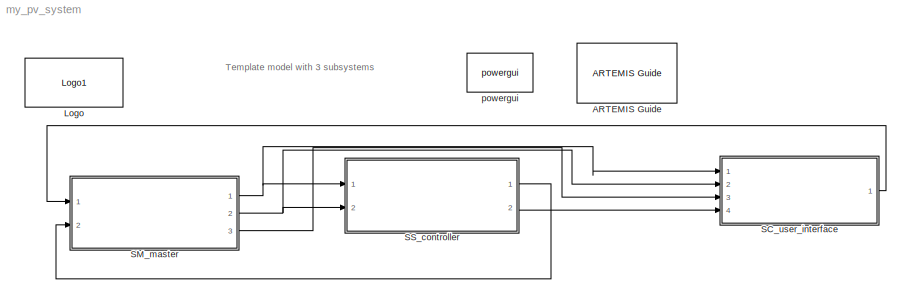
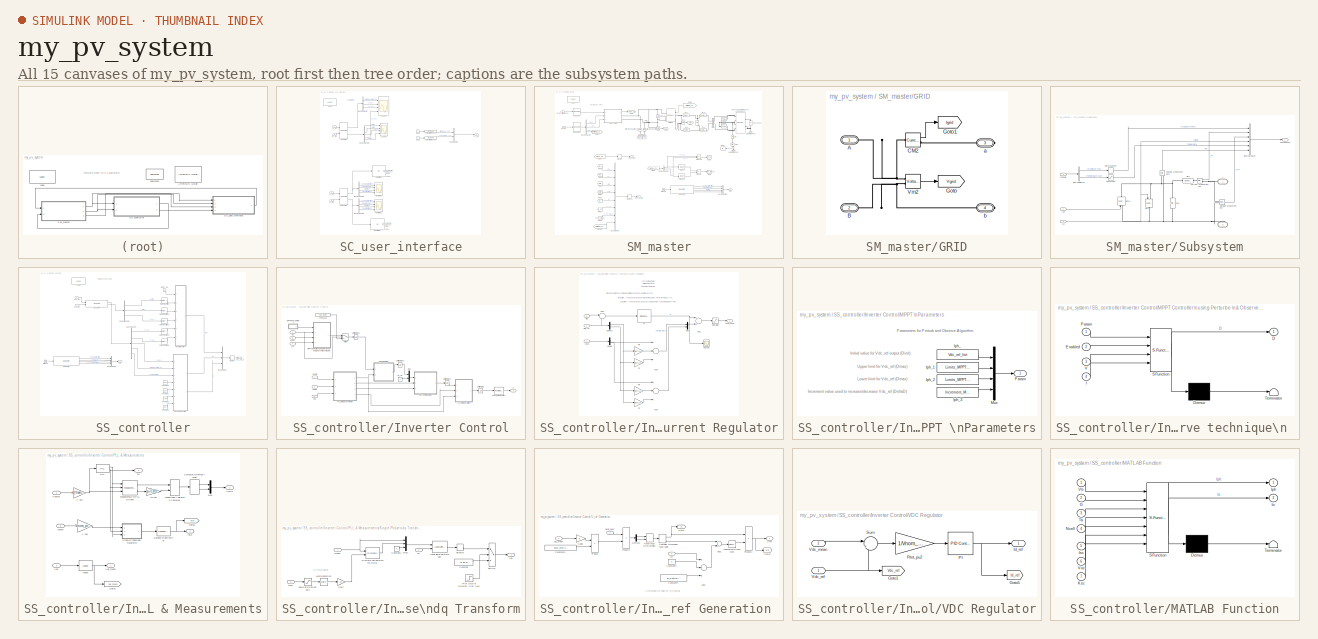
[diagram: thumbnail index - all 15 canvases of the model, root first then tree order]
MODEL my_pv_system
KIND model
BLOCK [Reference] ARTEMIS Guide  REF=artemis/ARTEMIS/ARTEMIS Guide
  Description = 5.0_z1
  LF = off
  Ports = []
  RT_fullcomp = off
  SID = 394
  SPSRulesBlock = SPSRules
  SourceBlock = artemis/ARTEMIS/ARTEMIS Guide
  SourceType = ARTEMISmethode
  Tag = FTSSmethode_opal_4hx0r99
  Thy_Impulse = on
  Ts = 50e-6
  ao = on
  ct_mac = off
  ctmm = off
  custom_type = off
  dpl_type = ARTEMiS DPL
  dtc = Off
  dtc_extra = 1
  dtc_opt = normal
  dtc_pied = 0.5
  dtc_sws = normal
  dyna = off
  lin_mov = off
  lock = on
  lsp = [0.001 2]
  nb_perm = 4
  opt = art5
  para = on
  paraExtinctionThy = off
  rlc_type = off
  simtype = off
  spike_skip = Disabled
  ssn = on
  ssn_ImpulseLoopBlockedStateUpdate = 5
  ssn_ext = off
  ssn_impulse = off
  ssn_impulse_loop = 5
  ssn_itvc = off
  ssn_ivic = off
  ssn_mov_iter_number = 5
  ssn_quasimpulse = off
  ssn_solver = Art5 with Backward Euler nodal interface
  ssn_switch_iter_number = 5
  tre = on
BLOCK [Reference] Logo  REF=opal_lib/Logo1
  Ports = []
  SID = 1
  SourceBlock = opal_lib/Logo1
  SourceType = Opal-RT logo
  vide = []
BLOCK [SubSystem] SC_user_interface
  Ports = [4, 1]
  RequestExecContextInheritance = off
  SID = 2
BLOCK [BusCreator] SC_user_interface/Bus\nCreator
  DisplayOption = bar
  Inputs = 2
  Ports = [2, 1]
  SID = 365
BLOCK [BusSelector] SC_user_interface/Bus\nSelector
  OutputSignals = Irradiance(W/m^2),I_PV,V_PV
  Ports = [1, 3]
  SID = 361
BLOCK [BusSelector] SC_user_interface/Bus\nSelector1
  OutputSignals = Vgrid,Igrid,Vdc,P_PV,Gate
  Ports = [1, 5]
  SID = 362
BLOCK [BusSelector] SC_user_interface/Bus\nSelector2
  OutputSignals = Computation time,Real step size,Idle time,Overrun times
  Ports = [1, 4]
  SID = 382
BLOCK [BusSelector] SC_user_interface/Bus\nSelector3
  OutputSignals = Computation time,Real step size,Idle time,Overrun times
  Ports = [1, 4]
  SID = 383
BLOCK [Reference] SC_user_interface/Logo  REF=opal_lib/Logo1
  Ports = []
  SID = 6
  SourceBlock = opal_lib/Logo1
  SourceType = Opal-RT logo
  vide = []
BLOCK [Scope] SC_user_interface/Monitoring
  DataFormat = StructureWithTime
  Floating = off
  LimitDataPoints = off
  NumInputPorts = 4
  Ports = [4]
  SID = 339
  SampleTime = 0
  SaveName = ScopeData6
  ShowLegends = off
  YMax = 5~5~5~5
  YMin = -5~-5~-5~-5
BLOCK [Scope] SC_user_interface/Monitoring1
  DataFormat = StructureWithTime
  Floating = off
  LimitDataPoints = off
  NumInputPorts = 4
  Ports = [4]
  SID = 384
  SampleTime = 0
  SaveName = ScopeData2
  ShowLegends = off
  YMax = 5~5~5~5
  YMin = -5~-5~-5~-5
BLOCK [Reference] SC_user_interface/OpComm  REF=rtlab/OpComm
  Interpolation = on
  Missed_Data = off
  Offset = off
  Ports = [2, 2]
  SID = 8
  Samples = off
  Sim_Time = off
  SourceBlock = rtlab/OpComm
  SourceType = RT-LAB OpComm
  Synchronization = on
  Threshold = 1.0
  dynSigOut = off
  from_console = 0
  groupe_acq = 1
  nbport = 2
  st = 0
  subsys_rate = 0
  warning_done = off
  writeOpCommFile = off
BLOCK [Reference] SC_user_interface/OpComm1  REF=rtlab/OpComm
  Interpolation = on
  Missed_Data = off
  Offset = off
  Ports = [2, 2]
  SID = 335
  Samples = off
  Sim_Time = off
  SourceBlock = rtlab/OpComm
  SourceType = RT-LAB OpComm
  Synchronization = on
  Threshold = 1.0
  dynSigOut = off
  from_console = 0
  groupe_acq = 2
  nbport = 2
  st = 0
  subsys_rate = 0
  warning_done = off
  writeOpCommFile = off
BLOCK [Scope] SC_user_interface/Scope
  DataFormat = StructureWithTime
  Floating = off
  LimitDataPoints = off
  NumInputPorts = 4
  Ports = [4]
  SID = 9
  SampleTime = 0
  ShowLegends = off
  TimeRange = 10
  YMax = 1001~9~500~3400
  YMin = 999~4~300~2000
BLOCK [Scope] SC_user_interface/Scope1
  DataFormat = StructureWithTime
  Floating = off
  LimitDataPoints = off
  NumInputPorts = 4
  Ports = [4]
  SID = 170
  SampleTime = 0
  SaveName = ScopeData1
  ShowLegends = off
  YMax = 100~5~5~5
  YMin = 0~-5~-5~-5
BLOCK [Reference] SC_user_interface/adjust reference1  REF=simulink/Math\nOperations/Slider\nGain
  Ports = [1, 1]
  SID = 79
  SourceBlock = simulink/Math\nOperations/Slider\nGain
  SourceType = Slider Gain
  gain = 25
  high = 60
  low = 0
BLOCK [Reference] SC_user_interface/adjust reference2  REF=simulink/Math\nOperations/Slider\nGain
  Ports = [1, 1]
  SID = 404
  SourceBlock = simulink/Math\nOperations/Slider\nGain
  SourceType = Slider Gain
  gain = 500
  high = 1000
  low = 0
BLOCK [Display] SC_user_interface/monitoring
  Decimation = 1
  Ports = [1]
  SID = 340
BLOCK [Display] SC_user_interface/monitoring1
  Decimation = 1
  Ports = [1]
  SID = 343
BLOCK [Constant] SC_user_interface/one1
  SID = 78
BLOCK [Constant] SC_user_interface/one2
  SID = 405
BLOCK [Inport] SC_user_interface/sc_in1
  IconDisplay = Port number
  SID = 3
BLOCK [Inport] SC_user_interface/sc_in2
  IconDisplay = Port number
  Port = 2
  SID = 4
BLOCK [Inport] SC_user_interface/sc_in4
  IconDisplay = Port number
  Port = 3
  SID = 336
BLOCK [Inport] SC_user_interface/sc_in5
  IconDisplay = Port number
  Port = 4
  SID = 337
BLOCK [Outport] SC_user_interface/sc_out
  IconDisplay = Port number
  SID = 12
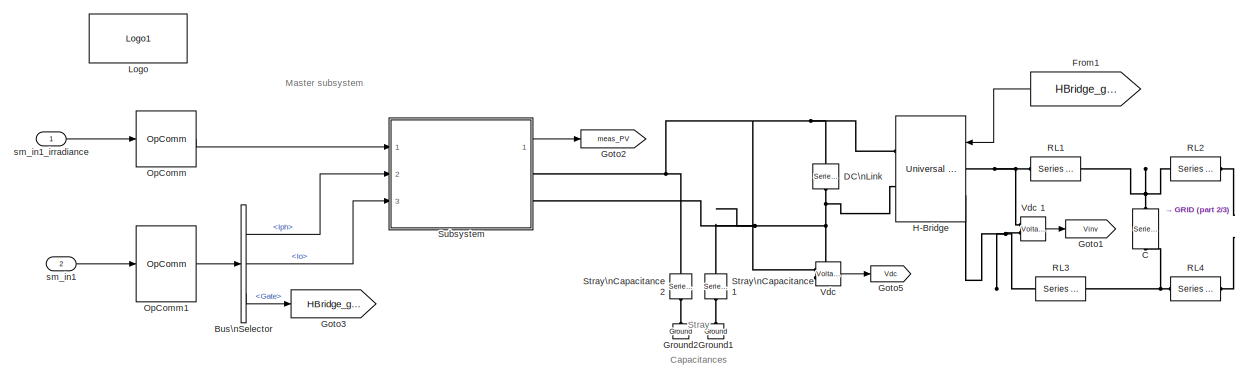
[diagram: SM_master - part 1/3, full width, top band]
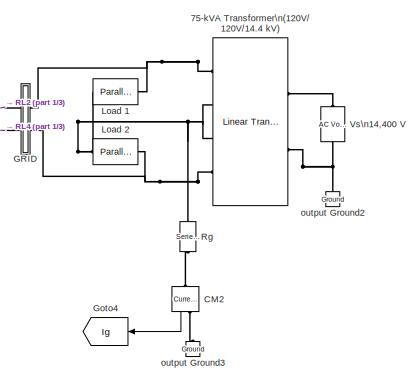
[diagram: SM_master - part 2/3, top right region]
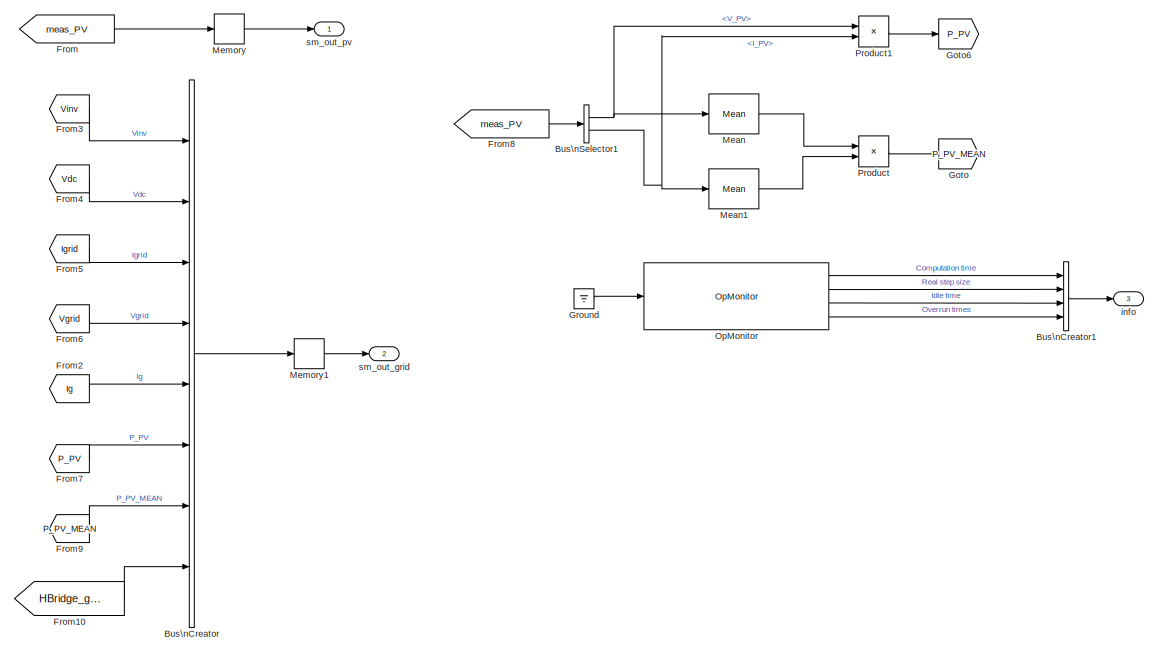
[diagram: SM_master - part 3/3, bottom center region]
BLOCK [SubSystem] SM_master
  Ports = [2, 3]
  RequestExecContextInheritance = off
  SID = 14
BLOCK [Reference] SM_master/75-kVA Transformer\n(120V//120V//14.4 kV)  REF=powerlib/Elements/Linear Transformer
  DataType = off
  Measurements = None
  NominalPower = [75e3,60]
  Ports = [0, 0, 0, 0, 0, 2, 4]
  RmLm = [50,50]
  SID = 86
  SourceBlock = powerlib/Elements/Linear Transformer
  SourceType = Linear Transformer
  ThreeWindings = on
  UNITS = pu
  winding1 = [14.4e3 0.01,0.03]
  winding2 = [120,0.02,0]
  winding3 = [120,0.02,0]
BLOCK [BusCreator] SM_master/Bus\nCreator
  DisplayOption = bar
  Inputs = 8
  Ports = [8, 1]
  SID = 354
BLOCK [BusCreator] SM_master/Bus\nCreator1
  DisplayOption = bar
  Ports = [4, 1]
  SID = 378
BLOCK [BusSelector] SM_master/Bus\nSelector
  OutputSignals = Iph,Io,Gate
  Ports = [1, 3]
  SID = 374
BLOCK [BusSelector] SM_master/Bus\nSelector1
  OutputSignals = V_PV,I_PV
  Ports = [1, 2]
  SID = 387
BLOCK [Reference] SM_master/C  REF=powerlib/Elements/Series RLC Load
  ActivePower = 10.5
  AttributesFormatString = \\n
  CapacitivePower = 525
  InductivePower = 0
  InitialCurrent = 0
  InitialVoltage = 0
  LConnTagsString = a
  Measurements = None
  NominalFrequency = 60
  NominalVoltage = 240
  Ports = [0, 0, 0, 0, 0, 1, 1]
  RConnTagsString = __new0
  SID = 87
  SetiL0 = off
  Setx0 = off
  SourceBlock = powerlib/Elements/Series RLC Load
  SourceType = Series RLC Load
BLOCK [Reference] SM_master/CM2  REF=powerlib/Measurements/Current Measurement
  OutputType = Complex
  PSBequivalent = 0
  PhasorSimulation = off
  Ports = [0, 1, 0, 0, 0, 1, 1]
  SID = 88
  SourceBlock = powerlib/Measurements/Current Measurement
  SourceType = Current Measurement
  UserDataPersistent = on
BLOCK [Reference] SM_master/DC\nLink  REF=powerlib/Elements/Series RLC Branch
  AttributesFormatString = \\n
  BranchType = C
  Capacitance = 3000e-6
  Inductance = 1.0
  InitialCurrent = 0
  InitialVoltage = 425
  LConnTagsString = __new0
  Measurements = None
  Ports = [0, 0, 0, 0, 0, 1, 1]
  RConnTagsString = __new0
  Resistance = 1.0
  SID = 89
  SetiL0 = off
  Setx0 = on
  SourceBlock = powerlib/Elements/Series RLC Branch
  SourceType = Series RLC Branch
BLOCK [From] SM_master/From
  GotoTag = meas_PV
  SID = 146
  TagVisibility = global
BLOCK [From] SM_master/From1
  GotoTag = HBridge_gate
  SID = 148
  TagVisibility = global
BLOCK [From] SM_master/From10
  GotoTag = HBridge_gate
  SID = 401
  TagVisibility = global
BLOCK [From] SM_master/From2
  GotoTag = Ig
  SID = 355
  TagVisibility = global
BLOCK [From] SM_master/From3
  GotoTag = Vinv
  SID = 356
  TagVisibility = global
BLOCK [From] SM_master/From4
  GotoTag = Vdc
  SID = 164
  TagVisibility = global
BLOCK [From] SM_master/From5
  GotoTag = Igrid
  SID = 166
  TagVisibility = global
BLOCK [From] SM_master/From6
  GotoTag = Vgrid
  SID = 167
  TagVisibility = global
BLOCK [From] SM_master/From7
  GotoTag = P_PV
  SID = 393
BLOCK [From] SM_master/From8
  GotoTag = meas_PV
  SID = 386
  TagVisibility = global
BLOCK [From] SM_master/From9
  GotoTag = P_PV_MEAN
  SID = 400
BLOCK [SubSystem] SM_master/GRID
  Ports = [0, 0, 0, 0, 0, 2, 2]
  RequestExecContextInheritance = off
  SID = 90
BLOCK [PMIOPort] SM_master/GRID/A
  Port = 1
  SID = 95
  Side = Left
BLOCK [PMIOPort] SM_master/GRID/B
  Port = 2
  SID = 96
  Side = Left
BLOCK [Reference] SM_master/GRID/CM2  REF=powerlib/Measurements/Current Measurement
  OutputType = Complex
  PSBequivalent = 0
  PhasorSimulation = off
  Ports = [0, 1, 0, 0, 0, 1, 1]
  SID = 91
  SourceBlock = powerlib/Measurements/Current Measurement
  SourceType = Current Measurement
  UserDataPersistent = on
BLOCK [Goto] SM_master/GRID/Goto
  GotoTag = Vgrid
  SID = 92
  TagVisibility = global
BLOCK [Goto] SM_master/GRID/Goto1
  GotoTag = Igrid
  SID = 93
  TagVisibility = global
BLOCK [Reference] SM_master/GRID/Vm2  REF=powerlib/Measurements/Voltage Measurement
  OutputType = Complex
  PSBequivalent = 0
  PhasorSimulation = off
  Ports = [0, 1, 0, 0, 0, 2]
  SID = 94
  SourceBlock = powerlib/Measurements/Voltage Measurement
  SourceType = Voltage Measurement
  UserDataPersistent = on
BLOCK [PMIOPort] SM_master/GRID/a
  Port = 3
  SID = 97
  Side = Right
BLOCK [PMIOPort] SM_master/GRID/b
  Port = 4
  SID = 98
  Side = Right
BLOCK [Goto] SM_master/Goto
  GotoTag = P_PV_MEAN
  SID = 392
BLOCK [Goto] SM_master/Goto1
  GotoTag = Vinv
  SID = 99
  TagVisibility = global
BLOCK [Goto] SM_master/Goto2
  GotoTag = meas_PV
  SID = 100
  TagVisibility = global
BLOCK [Goto] SM_master/Goto3
  GotoTag = HBridge_gate
  SID = 147
  TagVisibility = global
BLOCK [Goto] SM_master/Goto4
  GotoTag = Ig
  SID = 150
  TagVisibility = global
BLOCK [Goto] SM_master/Goto5
  GotoTag = Vdc
  SID = 101
  TagVisibility = global
BLOCK [Goto] SM_master/Goto6
  GotoTag = P_PV
  SID = 398
BLOCK [Ground] SM_master/Ground
  SID = 379
BLOCK [Reference] SM_master/Ground1  REF=powerlib/Elements/Ground
  LConnTagsString = a
  Ports = [0, 0, 0, 0, 0, 1]
  SID = 102
  SourceBlock = powerlib/Elements/Ground
  SourceType = Ground
BLOCK [Reference] SM_master/Ground2  REF=powerlib/Elements/Ground
  LConnTagsString = a
  Ports = [0, 0, 0, 0, 0, 1]
  SID = 103
  SourceBlock = powerlib/Elements/Ground
  SourceType = Ground
BLOCK [Reference] SM_master/H-Bridge   REF=powerlib/Power\nElectronics/Universal Bridge
  Arms = 2
  Device = IGBT / Diodes
  ForwardVoltage = 0
  ForwardVoltages = [ 0 0 ]
  GTOparameters = [ 10e-6 , 20e-6 ]
  IGBTparameters = [ 50e-6 , 50e-6 ]*0
  Lon = 0
  Measurements = None
  Measurements_2 = None
  Ports = [1, 0, 0, 0, 0, 2, 2]
  Ron = 1e-3
  SID = 104
  SnubberCapacitance = inf
  SnubberResistance = 1e6
  SourceBlock = powerlib/Power\nElectronics/Universal Bridge
  SourceType = Universal Bridge
  converterType = Rectifier
BLOCK [Reference] SM_master/Load 1  REF=powerlib/Elements/Parallel RLC Load
  ActivePower = 5e3
  AttributesFormatString = \\n
  CapacitivePower = 0
  InductivePower = 2e3
  InitialCurrent = 0
  InitialVoltage = 0
  LConnTagsString = a
  Measurements = None
  NominalFrequency = 50
  NominalVoltage = 120
  Ports = [0, 0, 0, 0, 0, 1, 1]
  RConnTagsString = __new0
  SID = 107
  SetiL0 = off
  Setx0 = off
  SourceBlock = powerlib/Elements/Parallel RLC Load
  SourceType = Parallel RLC Load
BLOCK [Reference] SM_master/Load 2  REF=powerlib/Elements/Parallel RLC Load
  ActivePower = 5e3
  AttributesFormatString = \\n
  CapacitivePower = 0
  InductivePower = 2e3
  InitialCurrent = 0
  InitialVoltage = 0
  LConnTagsString = a
  Measurements = None
  NominalFrequency = 50
  NominalVoltage = 120
  Ports = [0, 0, 0, 0, 0, 1, 1]
  RConnTagsString = __new0
  SID = 108
  SetiL0 = off
  Setx0 = off
  SourceBlock = powerlib/Elements/Parallel RLC Load
  SourceType = Parallel RLC Load
BLOCK [Reference] SM_master/Logo  REF=opal_lib/Logo1
  Ports = []
  SID = 18
  SourceBlock = opal_lib/Logo1
  SourceType = Opal-RT logo
  vide = []
BLOCK [Reference] SM_master/Mean  REF=powerlib_meascontrol/Measurements/Mean
  Freq = 50
  Ports = [1, 1]
  SID = 388
  SourceBlock = powerlib_meascontrol/Measurements/Mean
  SourceType = Mean
  Ts = 0
  Vinit = 0
BLOCK [Reference] SM_master/Mean1  REF=powerlib_meascontrol/Measurements/Mean
  Freq = 50
  Ports = [1, 1]
  SID = 389
  SourceBlock = powerlib_meascontrol/Measurements/Mean
  SourceType = Mean
  Ts = 0
  Vinit = 0
BLOCK [Memory] SM_master/Memory
  InheritSampleTime = on
  SID = 19
BLOCK [Memory] SM_master/Memory1
  InheritSampleTime = on
  SID = 162
BLOCK [Reference] SM_master/OpComm  REF=rtlab/OpComm
  Interpolation = on
  Missed_Data = off
  Offset = off
  Ports = [1, 1]
  SID = 21
  Samples = off
  Sim_Time = off
  SourceBlock = rtlab/OpComm
  SourceType = RT-LAB OpComm
  Synchronization = on
  Threshold = 1.0
  dynSigOut = off
  from_console = 1
  groupe_acq = 1
  nbport = 1
  st = 0
  subsys_rate = 0
  warning_done = off
  writeOpCommFile = off
BLOCK [Reference] SM_master/OpComm1  REF=rtlab/OpComm
  Interpolation = on
  Missed_Data = off
  Offset = off
  Ports = [1, 1]
  SID = 22
  Samples = off
  Sim_Time = off
  SourceBlock = rtlab/OpComm
  SourceType = RT-LAB OpComm
  Synchronization = on
  Threshold = 1.0
  dynSigOut = off
  from_console = 0
  groupe_acq = 1
  nbport = 1
  st = 0
  subsys_rate = 0
  warning_done = off
  writeOpCommFile = off
BLOCK [Reference] SM_master/OpMonitor  REF=rtlab/Monitoring/OpMonitor
  Ports = [1, 4]
  SID = 380
  SourceBlock = rtlab/Monitoring/OpMonitor
  SourceType = OpMonitor
  compute_time = on
  idle_time = on
  nb_overruns = on
  real_step = on
  user_name = my_event_name,another_event_name
  user_time = off
BLOCK [Product] SM_master/Product
  InputSameDT = off
  OutDataTypeStr = Inherit: Inherit via internal rule
  Ports = [2, 1]
  RndMeth = Floor
  SID = 390
  SaturateOnIntegerOverflow = off
BLOCK [Product] SM_master/Product1
  InputSameDT = off
  OutDataTypeStr = Inherit: Inherit via internal rule
  Ports = [2, 1]
  RndMeth = Floor
  SID = 399
  SaturateOnIntegerOverflow = off
BLOCK [Reference] SM_master/RL1  REF=powerlib/Elements/Series RLC Branch
  BranchType = RL
  Capacitance = 1e-6
  Inductance = 2.183e-3
  InitialCurrent = 0
  InitialVoltage = 0
  LConnTagsString = __new0
  Measurements = None
  Ports = [0, 0, 0, 0, 0, 1, 1]
  RConnTagsString = __new0
  Resistance = 8.23e-3
  SID = 109
  SetiL0 = off
  Setx0 = off
  SourceBlock = powerlib/Elements/Series RLC Branch
  SourceType = Series RLC Branch
BLOCK [Reference] SM_master/RL2  REF=powerlib/Elements/Series RLC Branch
  BranchType = RL
  Capacitance = 1e-6
  Inductance = 2.183e-3
  InitialCurrent = 0
  InitialVoltage = 0
  LConnTagsString = __new0
  Measurements = None
  Ports = [0, 0, 0, 0, 0, 1, 1]
  RConnTagsString = __new0
  Resistance = 8.23e-3
  SID = 110
  SetiL0 = off
  Setx0 = off
  SourceBlock = powerlib/Elements/Series RLC Branch
  SourceType = Series RLC Branch
BLOCK [Reference] SM_master/RL3  REF=powerlib/Elements/Series RLC Branch
  BranchType = RL
  Capacitance = 1e-6
  Inductance = 2.183e-3
  InitialCurrent = 0
  InitialVoltage = 0
  LConnTagsString = __new0
  Measurements = None
  Ports = [0, 0, 0, 0, 0, 1, 1]
  RConnTagsString = __new0
  Resistance = 8.23e-3
  SID = 111
  SetiL0 = off
  Setx0 = off
  SourceBlock = powerlib/Elements/Series RLC Branch
  SourceType = Series RLC Branch
BLOCK [Reference] SM_master/RL4  REF=powerlib/Elements/Series RLC Branch
  BranchType = RL
  Capacitance = 1e-6
  Inductance = 2.183e-3
  InitialCurrent = 0
  InitialVoltage = 0
  LConnTagsString = __new0
  Measurements = None
  Ports = [0, 0, 0, 0, 0, 1, 1]
  RConnTagsString = __new0
  Resistance = 8.23e-3
  SID = 112
  SetiL0 = off
  Setx0 = off
  SourceBlock = powerlib/Elements/Series RLC Branch
  SourceType = Series RLC Branch
BLOCK [Reference] SM_master/Rg  REF=powerlib/Elements/Series RLC Branch
  BranchType = R
  Capacitance = 50e-9
  Inductance = 1
  InitialCurrent = 0
  InitialVoltage = 0
  LConnTagsString = __new0
  Measurements = None
  Ports = [0, 0, 0, 0, 0, 1, 1]
  RConnTagsString = __new0
  Resistance = 0.2
  SID = 114
  SetiL0 = off
  Setx0 = off
  SourceBlock = powerlib/Elements/Series RLC Branch
  SourceType = Series RLC Branch
BLOCK [Reference] SM_master/Stray\nCapacitance1  REF=powerlib/Elements/Series RLC Branch
  BranchType = C
  Capacitance = 4e-9
  Inductance = 1
  InitialCurrent = 0
  InitialVoltage = 0
  LConnTagsString = __new0
  Measurements = None
  Ports = [0, 0, 0, 0, 0, 1, 1]
  RConnTagsString = __new0
  Resistance = 1e-3
  SID = 116
  SetiL0 = off
  Setx0 = off
  SourceBlock = powerlib/Elements/Series RLC Branch
  SourceType = Series RLC Branch
BLOCK [Reference] SM_master/Stray\nCapacitance2  REF=powerlib/Elements/Series RLC Branch
  BranchType = C
  Capacitance = 4e-9
  Inductance = 1
  InitialCurrent = 0
  InitialVoltage = 0
  LConnTagsString = __new0
  Measurements = None
  Ports = [0, 0, 0, 0, 0, 1, 1]
  RConnTagsString = __new0
  Resistance = 1e-3
  SID = 117
  SetiL0 = off
  Setx0 = off
  SourceBlock = powerlib/Elements/Series RLC Branch
  SourceType = Series RLC Branch
BLOCK [SubSystem] SM_master/Subsystem
  Ports = [3, 1, 0, 0, 0, 0, 2]
  RequestExecContextInheritance = off
  SID = 118
BLOCK [PMIOPort] SM_master/Subsystem/+
  Port = 1
  SID = 135
  Side = Right
BLOCK [PMIOPort] SM_master/Subsystem/-
  Port = 2
  SID = 136
  Side = Right
BLOCK [BusCreator] SM_master/Subsystem/Bus\nCreator
  DisplayOption = bar
  Inputs = 6
  Ports = [6, 1]
  SID = 353
BLOCK [BusSelector] SM_master/Subsystem/Bus\nSelector
  OutputSignals = Irradiance_con,Temperature_con
  Ports = [1, 2]
  SID = 372
BLOCK [Reference] SM_master/Subsystem/Current Measurement  REF=powerlib/Measurements/Current Measurement
  OutputType = Complex
  PSBequivalent = 0
  PhasorSimulation = off
  Ports = [0, 1, 0, 0, 0, 1, 1]
  SID = 126
  SourceBlock = powerlib/Measurements/Current Measurement
  SourceType = Current Measurement
  UserDataPersistent = on
BLOCK [Inport] SM_master/Subsystem/Io
  IconDisplay = Port number
  Port = 3
  SID = 376
BLOCK [Inport] SM_master/Subsystem/Iph
  IconDisplay = Port number
  Port = 2
  SID = 373
BLOCK [Outport] SM_master/Subsystem/PVmeasure
  IconDisplay = Port number
  SID = 137
BLOCK [Reference] SM_master/Subsystem/RL2  REF=powerlib/Elements/Series RLC Branch
  BranchType = R
  Capacitance = 1e-6
  Inductance = 2.183e-3
  InitialCurrent = 0
  InitialVoltage = 0
  LConnTagsString = __new0
  Measurements = None
  Ports = [0, 0, 0, 0, 0, 1, 1]
  RConnTagsString = __new0
  Resistance = 0.247*14
  SID = 129
  SetiL0 = off
  Setx0 = off
  SourceBlock = powerlib/Elements/Series RLC Branch
  SourceType = Series RLC Branch
BLOCK [Reference] SM_master/Subsystem/RL3  REF=powerlib/Elements/Series RLC Branch
  BranchType = R
  Capacitance = 1e-6
  Inductance = 2.183e-3
  InitialCurrent = 0
  InitialVoltage = 0
  LConnTagsString = __new0
  Measurements = None
  Ports = [0, 0, 0, 0, 0, 1, 1]
  RConnTagsString = __new0
  Resistance = 301.8*14
  SID = 130
  SetiL0 = off
  Setx0 = off
  SourceBlock = powerlib/Elements/Series RLC Branch
  SourceType = Series RLC Branch
BLOCK [RateLimiter] SM_master/Subsystem/Rate\nLimiter
  FallingSlewLimit = -8000
  InitialCondition = 1000
  RisingSlewLimit = 8000
  SID = 113
  SampleTimeMode = inherited
BLOCK [Saturate] SM_master/Subsystem/Saturation
  InputPortMap = u0
  LowerLimit = 5
  Ports = [1, 1]
  SID = 115
  UpperLimit = 55
BLOCK [Reference] SM_master/Subsystem/Voltage Measurement  REF=powerlib/Measurements/Voltage Measurement
  OutputType = Complex
  PSBequivalent = 0
  PhasorSimulation = off
  Ports = [0, 1, 0, 0, 0, 2]
  SID = 131
  SourceBlock = powerlib/Measurements/Voltage Measurement
  SourceType = Voltage Measurement
  UserDataPersistent = on
BLOCK [Reference] SM_master/Subsystem/Voltage Measurement1  REF=powerlib/Measurements/Voltage Measurement
  OutputType = Complex
  PSBequivalent = 0
  PhasorSimulation = off
  Ports = [0, 1, 0, 0, 0, 2]
  SID = 132
  SourceBlock = powerlib/Measurements/Voltage Measurement
  SourceType = Voltage Measurement
  UserDataPersistent = on
BLOCK [Inport] SM_master/Subsystem/console
  IconDisplay = Port number
  SID = 371
BLOCK [Reference] SM_master/Subsystem/io\n  REF=powerlib/Electrical\nSources/Controlled Current Source
  Amplitude = 8.05
  Frequency = 0
  Initialize = on
  Measurements = None
  Phase = 0
  Ports = [1, 0, 0, 0, 0, 1, 1]
  SID = 133
  SourceBlock = powerlib/Electrical\nSources/Controlled Current Source
  SourceType = Controlled Current Source
  Source_Type = DC
BLOCK [Reference] SM_master/Subsystem/iph\n  REF=powerlib/Electrical\nSources/Controlled Current Source
  Amplitude = 8.05
  Frequency = 0
  Initialize = on
  Measurements = None
  Phase = 0
  Ports = [1, 0, 0, 0, 0, 1, 1]
  SID = 134
  SourceBlock = powerlib/Electrical\nSources/Controlled Current Source
  SourceType = Controlled Current Source
  Source_Type = DC
BLOCK [Reference] SM_master/Vdc   REF=powerlib/Measurements/Voltage Measurement
  AttributesFormatString = \\n
  OutputType = Magnitude
  PSBequivalent = 0
  PhasorSimulation = off
  Ports = [0, 1, 0, 0, 0, 2]
  SID = 139
  SourceBlock = powerlib/Measurements/Voltage Measurement
  SourceType = Voltage Measurement
  Tag = PoWeRsYsTeMmEaSuReMeNt
BLOCK [Reference] SM_master/Vdc 1  REF=powerlib/Measurements/Voltage Measurement
  AttributesFormatString = \\n
  OutputType = Magnitude
  PSBequivalent = 0
  PhasorSimulation = off
  Ports = [0, 1, 0, 0, 0, 2]
  SID = 140
  SourceBlock = powerlib/Measurements/Voltage Measurement
  SourceType = Voltage Measurement
  Tag = PoWeRsYsTeMmEaSuReMeNt
BLOCK [Reference] SM_master/Vs\n14,400 V  REF=powerlib/Electrical\nSources/AC Voltage Source
  Amplitude = 14400*sqrt(2)
  AttributesFormatString = \\n
  Description = source block
  Frequency = 50
  Measurements = None
  Phase = 0
  Ports = [0, 0, 0, 0, 0, 1, 1]
  SID = 141
  SampleTime = 0
  SourceBlock = powerlib/Electrical\nSources/AC Voltage Source
  SourceType = AC Voltage Source
BLOCK [Outport] SM_master/info
  IconDisplay = Port number
  Port = 3
  SID = 381
BLOCK [Reference] SM_master/output Ground2  REF=powerlib/Elements/Ground
  AttributesFormatString = \\n
  LConnTagsString = a
  Ports = [0, 0, 0, 0, 0, 1]
  SID = 142
  SourceBlock = powerlib/Elements/Ground
  SourceType = Ground
BLOCK [Reference] SM_master/output Ground3  REF=powerlib/Elements/Ground
  AttributesFormatString = \\n
  LConnTagsString = a
  Ports = [0, 0, 0, 0, 0, 1]
  SID = 143
  SourceBlock = powerlib/Elements/Ground
  SourceType = Ground
BLOCK [Inport] SM_master/sm_in1
  IconDisplay = Port number
  Port = 2
  SID = 17
BLOCK [Inport] SM_master/sm_in1_irradiance
  IconDisplay = Port number
  SID = 15
BLOCK [Outport] SM_master/sm_out_grid
  IconDisplay = Port number
  Port = 2
  SID = 161
BLOCK [Outport] SM_master/sm_out_pv
  IconDisplay = Port number
  SID = 24
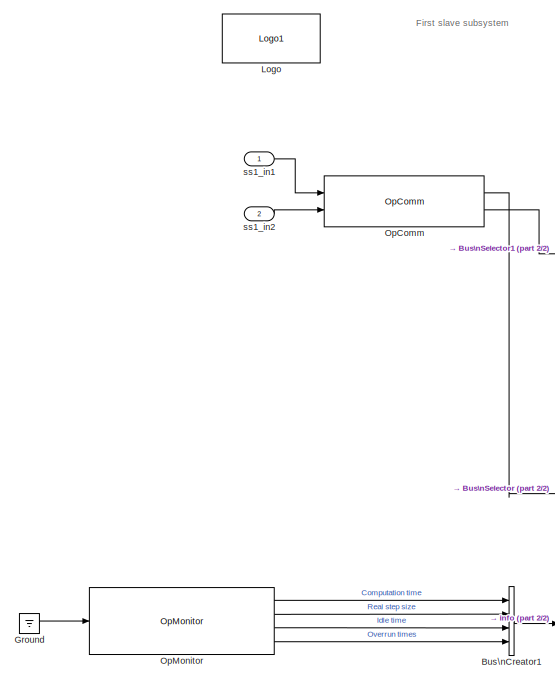
[diagram: SS_controller - part 1/2, middle left region]
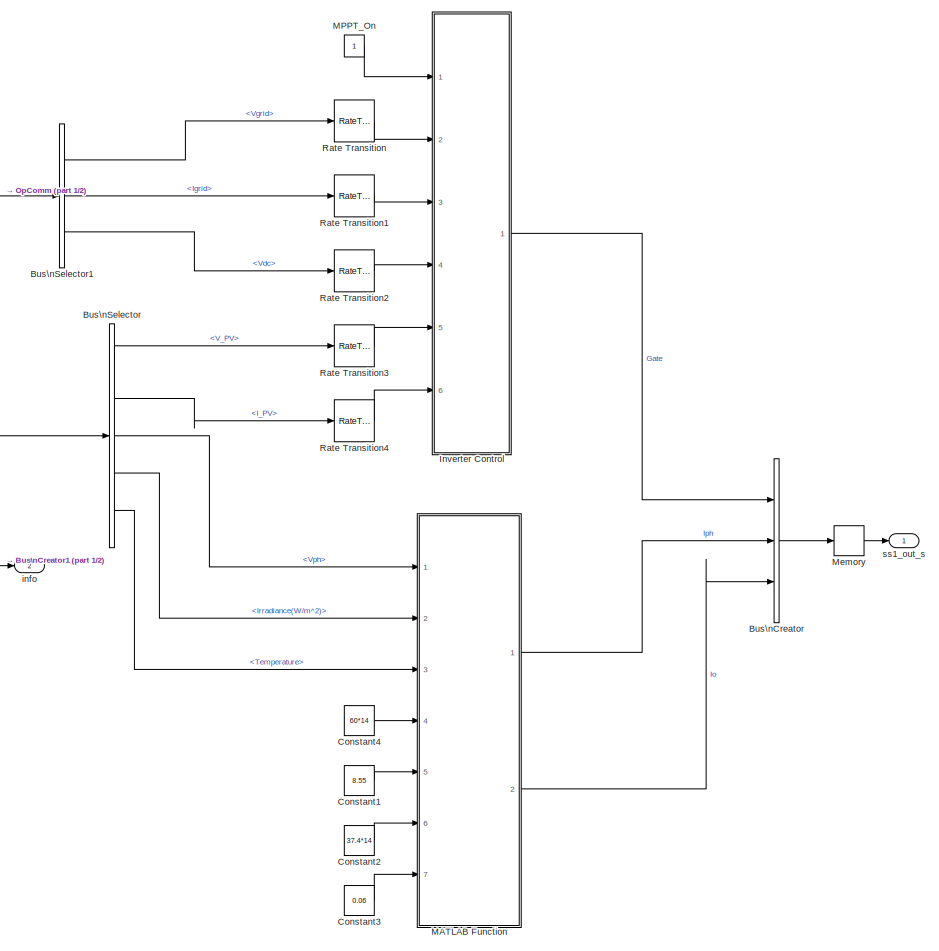
[diagram: SS_controller - part 2/2, right side, full height]
BLOCK [SubSystem] SS_controller
  Ports = [2, 2]
  RequestExecContextInheritance = off
  SID = 27
BLOCK [BusCreator] SS_controller/Bus\nCreator
  DisplayOption = bar
  Inputs = 3
  Ports = [3, 1]
  SID = 375
BLOCK [BusCreator] SS_controller/Bus\nCreator1
  DisplayOption = bar
  Ports = [4, 1]
  SID = 377
BLOCK [BusSelector] SS_controller/Bus\nSelector
  OutputSignals = V_PV,I_PV,Vph,Irradiance(W/m^2),Temperature
  Ports = [1, 5]
  SID = 359
BLOCK [BusSelector] SS_controller/Bus\nSelector1
  OutputSignals = Vgrid,Igrid,Vdc
  Ports = [1, 3]
  SID = 360
BLOCK [Constant] SS_controller/Constant1
  SID = 122
  Value = 8.55
BLOCK [Constant] SS_controller/Constant2
  SID = 123
  Value = 37.4*14
BLOCK [Constant] SS_controller/Constant3
  SID = 124
  Value = 0.06
BLOCK [Constant] SS_controller/Constant4
  SID = 125
  Value = 60*14
BLOCK [Ground] SS_controller/Ground
  SID = 345
BLOCK [SubSystem] SS_controller/Inverter Control
  Ports = [6, 1]
  RequestExecContextInheritance = off
  SID = 187
BLOCK [SubSystem] SS_controller/Inverter Control/Current Regulator
  Ports = [3, 1]
  RequestExecContextInheritance = off
  SID = 194
BLOCK [Sum] SS_controller/Inverter Control/Current Regulator/Add1
  InputSameDT = off
  Inputs = ++-
  OutDataTypeStr = Inherit: Inherit via internal rule
  Ports = [3, 1]
  SID = 198
  SaturateOnIntegerOverflow = off
BLOCK [Sum] SS_controller/Inverter Control/Current Regulator/Add2
  InputSameDT = off
  OutDataTypeStr = Inherit: Inherit via internal rule
  Ports = [2, 1]
  SID = 199
  SaturateOnIntegerOverflow = off
BLOCK [Sum] SS_controller/Inverter Control/Current Regulator/Add3
  InputSameDT = off
  Inputs = +++
  OutDataTypeStr = Inherit: Inherit via internal rule
  Ports = [3, 1]
  SID = 200
  SaturateOnIntegerOverflow = off
BLOCK [Demux] SS_controller/Inverter Control/Current Regulator/Demux
  DisplayOption = bar
  Outputs = 2
  Ports = [1, 2]
  SID = 201
BLOCK [Demux] SS_controller/Inverter Control/Current Regulator/Demux1
  DisplayOption = bar
  Outputs = 2
  Ports = [1, 2]
  SID = 202
BLOCK [Inport] SS_controller/Inverter Control/Current Regulator/IdIq
  IconDisplay = Port number
  Port = 3
  PortDimensions = 2
  SID = 197
BLOCK [Inport] SS_controller/Inverter Control/Current Regulator/IdIq_ref
  IconDisplay = Port number
  PortDimensions = 2
  SID = 195
BLOCK [Gain] SS_controller/Inverter Control/Current Regulator/Lff
  Gain = RLff(2)
  SID = 203
BLOCK [Gain] SS_controller/Inverter Control/Current Regulator/Lff  
  Gain = RLff(2)
  SID = 204
BLOCK [Mux] SS_controller/Inverter Control/Current Regulator/Mux
  DisplayOption = bar
  Inputs = 2
  Ports = [2, 1]
  SID = 205
BLOCK [Reference] SS_controller/Inverter Control/Current Regulator/PI  REF=simulink/Continuous/PID Controller
  AntiWindupMode = none
  Controller = PI
  D = 0
  DOutDataTypeStr = Inherit: Inherit via internal rule
  DOutMax = []
  DOutMin = []
  DParamDataTypeStr = Inherit: Inherit via internal rule
  DParamMax = []
  DParamMin = []
  DifferentiatorICPrevScaledInput = 0
  DifferentiatorOutDataTypeStr = Inherit: Inherit via internal rule
  DifferentiatorOutMax = []
  DifferentiatorOutMin = []
  ExternalReset = none
  FilterContinuousStateAttributes = ''
  FilterMethod = Forward Euler
  FilterOutDataTypeStr = Inherit: Inherit via internal rule
  FilterOutMax = []
  FilterOutMin = []
  FilterRTWStateStorageClass = Auto
  FilterStateMustResolveToSignalObject = off
  Form = Parallel
  I = Ki_Ireg
  IOutDataTypeStr = Inherit: Inherit via internal rule
  IOutMax = []
  IOutMin = []
  IParamDataTypeStr = Inherit: Inherit via internal rule
  IParamMax = []
  IParamMin = []
  IgnoreLimit = off
  InitialConditionForFilter = 0
  InitialConditionForIntegrator = 0
  InitialConditionSource = internal
  IntegratorContinuousStateAttributes = ''
  IntegratorMethod = Forward Euler
  IntegratorOutDataTypeStr = Inherit: Inherit via internal rule
  IntegratorOutMax = []
  IntegratorOutMin = []
  IntegratorRTWStateStorageClass = Auto
  IntegratorStateMustResolveToSignalObject = off
  Kb = 1
  KbOutDataTypeStr = Inherit: Inherit via internal rule
  KbOutMax = []
  KbOutMin = []
  KbParamDataTypeStr = Inherit: Inherit via internal rule
  KbParamMax = []
  KbParamMin = []
  Kt = 1
  KtOutDataTypeStr = Inherit: Inherit via internal rule
  KtOutMax = []
  KtOutMin = []
  KtParamDataTypeStr = Inherit: Inherit via internal rule
  KtParamMax = []
  KtParamMin = []
  LimitOutput = on
  LinearizeAsGain = off
  LockScale = off
  LowerSaturationLimit = -1.5
  N = 100
  NOutDataTypeStr = Inherit: Inherit via internal rule
  NOutMax = []
  NOutMin = []
  NParamDataTypeStr = Inherit: Inherit via internal rule
  NParamMax = []
  NParamMin = []
  P = Kp_Ireg
  POutDataTypeStr = Inherit: Inherit via internal rule
  POutMax = []
  POutMin = []
  PParamDataTypeStr = Inherit: Inherit via internal rule
  PParamMax = []
  PParamMin = []
  Ports = [1, 1]
  RndMeth = Floor
  SID = 206
  SampleTime = Ts_Control
  SaturateOnIntegerOverflow = off
  SaturationOutDataTypeStr = Inherit: Same as input
  SaturationOutMax = []
  SaturationOutMin = []
  SourceBlock = simulink/Continuous/PID Controller
  SourceType = PID 1dof
  SumAccumDataTypeStr = Inherit: Inherit via internal rule
  SumDAccumDataTypeStr = Inherit: Inherit via internal rule
  SumDOutDataTypeStr = Inherit: Inherit via internal rule
  SumDOutMax = []
  SumDOutMin = []
  SumI1AccumDataTypeStr = Inherit: Inherit via internal rule
  SumI1OutDataTypeStr = Inherit: Inherit via internal rule
  SumI1OutMax = []
  SumI1OutMin = []
  SumI2AccumDataTypeStr = Inherit: Inherit via internal rule
  SumI2OutDataTypeStr = Inherit: Inherit via internal rule
  SumI2OutMax = []
  SumI2OutMin = []
  SumI3AccumDataTypeStr = Inherit: Inherit via internal rule
  SumI3OutDataTypeStr = Inherit: Inherit via internal rule
  SumI3OutMax = []
  SumI3OutMin = []
  SumOutDataTypeStr = Inherit: Inherit via internal rule
  SumOutMax = []
  SumOutMin = []
  TimeDomain = Discrete-time
  TrackingMode = off
  UpperSaturationLimit = 1.5
  UseFilter = on
  ZeroCross = on
BLOCK [Scope] SS_controller/Inverter Control/Current Regulator/PI_Ireg1
  Floating = off
  LimitDataPoints = off
  NumInputPorts = 1
  Ports = [1]
  SID = 207
  ShowLegends = off
  YMax = 0.45
  YMin = -0.25
BLOCK [Gain] SS_controller/Inverter Control/Current Regulator/Rff
  Gain = RLff(1)
  SID = 208
BLOCK [Gain] SS_controller/Inverter Control/Current Regulator/Rff 
  Gain = RLff(1)
  SID = 209
BLOCK [Saturate] SS_controller/Inverter Control/Current Regulator/Saturation
  InputPortMap = u0
  LowerLimit = -1.5
  Ports = [1, 1]
  SID = 210
  UpperLimit = 1.5
BLOCK [Sum] SS_controller/Inverter Control/Current Regulator/Sum
  IconShape = round
  InputSameDT = off
  Inputs = |-+
  OutDataTypeStr = Inherit: Inherit via internal rule
  Ports = [2, 1]
  SID = 211
  SaturateOnIntegerOverflow = off
BLOCK [Inport] SS_controller/Inverter Control/Current Regulator/VdVq
  IconDisplay = Port number
  Port = 2
  PortDimensions = 2
  SID = 196
BLOCK [Outport] SS_controller/Inverter Control/Current Regulator/VdVq_conv
  IconDisplay = Port number
  SID = 212
BLOCK [Inport] SS_controller/Inverter Control/I_PV
  IconDisplay = Port number
  Port = 6
  PortDimensions = 1
  SID = 193
BLOCK [Inport] SS_controller/Inverter Control/Ihome
  IconDisplay = Port number
  Port = 3
  PortDimensions = 1
  SID = 190
BLOCK [Constant] SS_controller/Inverter Control/Iq_ref
  SID = 218
  Value = 0
BLOCK [SubSystem] SS_controller/Inverter Control/MPPT Controller\nusing Perturbe \n& Observe technique\n 
  ErrorFcn = Stateflow.Translate.translate
  PermitHierarchicalResolution = ExplicitOnly
  Ports = [4, 1]
  RequestExecContextInheritance = off
  SFBlockType = MATLAB Function
  SID = 231
  TreatAsAtomicUnit = on
BLOCK [Demux] SS_controller/Inverter Control/MPPT Controller\nusing Perturbe \n& Observe technique\n / Demux 
  Outputs = 1
  Ports = [1, 1]
  SID = 231::127
BLOCK [S-Function] SS_controller/Inverter Control/MPPT Controller\nusing Perturbe \n& Observe technique\n / SFunction 
  EnableBusSupport = on
  FunctionName = sf_sfun
  PortCounts = [4 2]
  Ports = [4, 2]
  SID = 231::126
  Tag = Stateflow S-Function my_pv_system 2
BLOCK [Terminator] SS_controller/Inverter Control/MPPT Controller\nusing Perturbe \n& Observe technique\n / Terminator 
  SID = 231::128
BLOCK [Outport] SS_controller/Inverter Control/MPPT Controller\nusing Perturbe \n& Observe technique\n /D
  IconDisplay = Port number
  SID = 231::35
BLOCK [Inport] SS_controller/Inverter Control/MPPT Controller\nusing Perturbe \n& Observe technique\n /Enabled
  IconDisplay = Port number
  Port = 2
  SID = 231::91
BLOCK [Inport] SS_controller/Inverter Control/MPPT Controller\nusing Perturbe \n& Observe technique\n /I
  IconDisplay = Port number
  Port = 4
  SID = 231::1
BLOCK [Inport] SS_controller/Inverter Control/MPPT Controller\nusing Perturbe \n& Observe technique\n /Param
  IconDisplay = Port number
  SID = 231::90
BLOCK [Inport] SS_controller/Inverter Control/MPPT Controller\nusing Perturbe \n& Observe technique\n /V
  IconDisplay = Port number
  Port = 3
  SID = 231::85
BLOCK [SubSystem] SS_controller/Inverter Control/MPPT \nParameters
  Ports = [0, 1]
  RequestExecContextInheritance = off
  SID = 219
BLOCK [Constant] SS_controller/Inverter Control/MPPT \nParameters/Iph_
  SID = 220
  Value = Vdc_ref_Init
BLOCK [Constant] SS_controller/Inverter Control/MPPT \nParameters/Iph_1
  SID = 221
  Value = Limits_MPPT(1)
BLOCK [Constant] SS_controller/Inverter Control/MPPT \nParameters/Iph_2
  SID = 222
  Value = Limits_MPPT(2)
BLOCK [Constant] SS_controller/Inverter Control/MPPT \nParameters/Iph_3
  SID = 223
  Value = Increment_MPPT
BLOCK [Mux] SS_controller/Inverter Control/MPPT \nParameters/Mux
  DisplayOption = bar
  Ports = [4, 1]
  SID = 224
BLOCK [Outport] SS_controller/Inverter Control/MPPT \nParameters/Param
  IconDisplay = Port number
  SID = 225
BLOCK [Mux] SS_controller/Inverter Control/Mux
  DisplayOption = bar
  Inputs = 2
  Ports = [2, 1]
  SID = 232
BLOCK [Inport] SS_controller/Inverter Control/On
  IconDisplay = Port number
  PortDimensions = 1
  SID = 188
BLOCK [SubSystem] SS_controller/Inverter Control/PLL & Measurements
  Ports = [3, 4]
  RequestExecContextInheritance = off
  SID = 233
BLOCK [Gain] SS_controller/Inverter Control/PLL & Measurements/A->pu
  Gain = Vnom_prim/Pnom/sqrt(2)
  SID = 237
BLOCK [ComplexToRealImag] SS_controller/Inverter Control/PLL & Measurements/Complex to\nReal-Imag
  Ports = [1, 2]
  SID = 238
BLOCK [Reference] SS_controller/Inverter Control/PLL & Measurements/Fundamental\n(PLL-Driven)  REF=powerlib_meascontrol/Measurements/Fundamental\n(PLL-Driven)
  Finit = Fnom
  Fmin = 45
  InInit = [1, 0]
  Ports = [3, 2]
  SID = 239
  SourceBlock = powerlib_meascontrol/Measurements/Fundamental\n(PLL-Driven)
  SourceType = Fundamental (PLL-Driven)
  Ts = Ts_Control
BLOCK [Goto] SS_controller/Inverter Control/PLL & Measurements/Goto1
  GotoTag = Vdc_mean
  SID = 240
  TagVisibility = global
BLOCK [Goto] SS_controller/Inverter Control/PLL & Measurements/Goto3
  GotoTag = IdIq
  SID = 241
  TagVisibility = global
BLOCK [Outport] SS_controller/Inverter Control/PLL & Measurements/IdIq
  IconDisplay = Port number
  Port = 3
  SID = 268
BLOCK [Inport] SS_controller/Inverter Control/PLL & Measurements/Ihome
  IconDisplay = Port number
  Port = 2
  SID = 235
BLOCK [MagnitudeAngleToComplex] SS_controller/Inverter Control/PLL & Measurements/Magnitude-Angle\nto Complex
  Ports = [2, 1]
  SID = 242
BLOCK [Reference] SS_controller/Inverter Control/PLL & Measurements/Mean  REF=powerlib_meascontrol/Measurements/Mean
  Freq = Fnom
  Ports = [1, 1]
  SID = 243
  SourceBlock = powerlib_meascontrol/Measurements/Mean
  SourceType = Mean
  Ts = Ts_Control
  Vinit = Vdc_ref_Init
BLOCK [Mux] SS_controller/Inverter Control/PLL & Measurements/Mux
  DisplayOption = bar
  Inputs = 2
  Ports = [2, 1]
  SID = 244
BLOCK [Reference] SS_controller/Inverter Control/PLL & Measurements/PLL  REF=powerlib_meascontrol/PLL/PLL
  AGC = on
  FilterCutOffFreq = 25
  Fmin = 40
  MaxRateChangeFreq = 12
  ParK = [180, 3200, 1]
  Par_Init = [0, Fnom]
  Ports = [1, 2]
  SID = 245
  SourceBlock = powerlib_meascontrol/PLL/PLL
  SourceType = PLL
  TcD = 1e-4
  Ts = Ts_Control
BLOCK [Reference] SS_controller/Inverter Control/PLL & Measurements/Second-Order\nFilter  REF=powerlib_meascontrol/Filters/Second-Order\nFilter
  FilterType = Lowpass
  Fo = 2000
  FreqRange = [0, 500, 1]
  Initialize = on
  PlotResponse = off
  Ports = [1, 1]
  SID = 246
  SourceBlock = powerlib_meascontrol/Filters/Second-Order\nFilter
  SourceType = Second-Order Filter
  Ts = Ts_Control
  Vac_Init = [0,  0,  60;0,0,60]
  Vdc_Init = [0.9 0]
  Zeta = 1
BLOCK [SubSystem] SS_controller/Inverter Control/PLL & Measurements/Single-Phase\ndq Transform
  Ports = [3, 1]
  RequestExecContextInheritance = off
  SID = 247
BLOCK [Reference] SS_controller/Inverter Control/PLL & Measurements/Single-Phase\ndq Transform/Alpha-Beta-Zero\nto dq0  REF=powerlib_meascontrol/Transformations/Alpha-Beta-Zero\nto dq0
  Alignment = 90 degrees behind phase A axis
  Ports = [2, 1]
  SID = 251
  SourceBlock = powerlib_meascontrol/Transformations/Alpha-Beta-Zero\nto dq0
  SourceType = Alpha-Beta-Zero to dq0 Transformation
BLOCK [Constant] SS_controller/Inverter Control/PLL & Measurements/Single-Phase\ndq Transform/Constant
  SID = 252
  Value = [0.92 0]
BLOCK [Constant] SS_controller/Inverter Control/PLL & Measurements/Single-Phase\ndq Transform/Constant1
  SID = 253
  Value = 0
BLOCK [Reference] SS_controller/Inverter Control/PLL & Measurements/Single-Phase\ndq Transform/Discrete Variable\nTime Delay  REF=powerlib_meascontrol/Additional Components/Discrete Variable\nTime Delay
  DFT = on
  InitialValue = 0
  MaxDelay = 1
  Ports = [2, 1]
  SID = 254
  SourceBlock = powerlib_meascontrol/Additional Components/Discrete Variable\nTime Delay
  SourceType = Discrete Variable Time Delay
  Ts = Ts_Control
BLOCK [Step] SS_controller/Inverter Control/PLL & Measurements/Single-Phase\ndq Transform/First cycle of simulation\nId=0.92, Iq=0
  SID = 255
  SampleTime = Ts_Control
  Time = 1/Fnom
BLOCK [Inport] SS_controller/Inverter Control/PLL & Measurements/Single-Phase\ndq Transform/Freq
  IconDisplay = Port number
  Port = 3
  SID = 250
BLOCK [Gain] SS_controller/Inverter Control/PLL & Measurements/Single-Phase\ndq Transform/Gain
  Gain = 1/4
  OutDataTypeStr = Inherit: Inherit via internal rule
  ParamDataTypeStr = Inherit: Inherit via internal rule
  SID = 256
  SaturateOnIntegerOverflow = off
BLOCK [Outport] SS_controller/Inverter Control/PLL & Measurements/Single-Phase\ndq Transform/Idq
  IconDisplay = Port number
  SID = 262
BLOCK [Inport] SS_controller/Inverter Control/PLL & Measurements/Single-Phase\ndq Transform/Imeas
  IconDisplay = Port number
  SID = 248
BLOCK [Math] SS_controller/Inverter Control/PLL & Measurements/Single-Phase\ndq Transform/Math\nFunction
  Operator = reciprocal
  Ports = [1, 1]
  SID = 257
BLOCK [Mux] SS_controller/Inverter Control/PLL & Measurements/Single-Phase\ndq Transform/Mux1
  DisplayOption = bar
  Inputs = 3
  Ports = [3, 1]
  SID = 258
BLOCK [Selector] SS_controller/Inverter Control/PLL & Measurements/Single-Phase\ndq Transform/Selector
  Indices = [1 2]
  InputPortWidth = 3
  Ports = [1, 1]
  SID = 259
BLOCK [Switch] SS_controller/Inverter Control/PLL & Measurements/Single-Phase\ndq Transform/Switch
  Criteria = u2 ~= 0
  InputSameDT = off
  SID = 260
  SaturateOnIntegerOverflow = off
BLOCK [Saturate] SS_controller/Inverter Control/PLL & Measurements/Single-Phase\ndq Transform/avoid division\nby zero
  InputPortMap = u0
  LowerLimit = 40
  Ports = [1, 1]
  SID = 261
  UpperLimit = 70
BLOCK [Inport] SS_controller/Inverter Control/PLL & Measurements/Single-Phase\ndq Transform/wt
  IconDisplay = Port number
  Port = 2
  SID = 249
BLOCK [Gain] SS_controller/Inverter Control/PLL & Measurements/V->pu
  Gain = 1/(Vnom_prim*sqrt(2))
  SID = 264
BLOCK [Outport] SS_controller/Inverter Control/PLL & Measurements/VdVq
  IconDisplay = Port number
  Port = 2
  SID = 267
BLOCK [Inport] SS_controller/Inverter Control/PLL & Measurements/Vdc
  IconDisplay = Port number
  Port = 3
  SID = 236
BLOCK [Outport] SS_controller/Inverter Control/PLL & Measurements/Vdc_mean
  IconDisplay = Port number
  SID = 266
BLOCK [Inport] SS_controller/Inverter Control/PLL & Measurements/Vhome
  IconDisplay = Port number
  SID = 234
BLOCK [Gain] SS_controller/Inverter Control/PLL & Measurements/to-rad
  Gain = pi/180
  OutDataTypeStr = Inherit: Inherit via internal rule
  ParamDataTypeStr = Inherit: Inherit via internal rule
  SID = 265
  SaturateOnIntegerOverflow = off
BLOCK [Outport] SS_controller/Inverter Control/PLL & Measurements/wt
  IconDisplay = Port number
  Port = 4
  SID = 269
BLOCK [Reference] SS_controller/Inverter Control/PWM_Generator  REF=powerlib_meascontrol/Pulse & Signal\nGenerators/PWM Generator\n(2-Level)
  AttributesFormatString = %<ModulatorType>
  Fc = Fc
  Freq = 60
  MinMax = [ -1  1 ]
  ModulatingSignals = off
  ModulatorMode = Unsynchronized
  ModulatorType = Single-phase full-bridge - Bipolar modulation (4 pulses)
  Pc = 90
  Phase = 0
  Ports = [1, 1]
  SID = 270
  SamplingTechnique = Natural
  ShowCarrierOutport = off
  SourceBlock = powerlib_meascontrol/Pulse & Signal\nGenerators/PWM Generator\n(2-Level)
  SourceType = PWM Generator (2-Level)
  Ts = Ts_PWMgenerator
  m = 0.8
  nF = 27
BLOCK [Switch] SS_controller/Inverter Control/Switch
  Criteria = u2 ~= 0
  InputSameDT = off
  SID = 271
  SaturateOnIntegerOverflow = off
BLOCK [SubSystem] SS_controller/Inverter Control/U_ref Generation 
  Ports = [3, 1]
  RequestExecContextInheritance = off
  SID = 272
BLOCK [Sum] SS_controller/Inverter Control/U_ref Generation /Add1
  InputSameDT = off
  Inputs = +++
  OutDataTypeStr = Inherit: Inherit via internal rule
  Ports = [3, 1]
  SID = 276
  SaturateOnIntegerOverflow = off
BLOCK [Sum] SS_controller/Inverter Control/U_ref Generation /Add2
  InputSameDT = off
  OutDataTypeStr = Inherit: Inherit via internal rule
  Ports = [2, 1]
  SID = 277
  SaturateOnIntegerOverflow = off
BLOCK [ComplexToMagnitudeAngle] SS_controller/Inverter Control/U_ref Generation /Complex to\nMagnitude-Angle
  Ports = [1, 2]
  SID = 278
BLOCK [Constant] SS_controller/Inverter Control/U_ref Generation /Constant2
  SID = 279
  Value = 0
BLOCK [Constant] SS_controller/Inverter Control/U_ref Generation /Constant3
  SID = 280
  Value = Vnom_prim*sqrt(2)
BLOCK [Constant] SS_controller/Inverter Control/U_ref Generation /Constant4
  SID = 281
  Value = Ts_Control*Fnom*(2*pi)
BLOCK [Demux] SS_controller/Inverter Control/U_ref Generation /Demux1
  DisplayOption = bar
  Outputs = 2
  Ports = [1, 2]
  SID = 282
BLOCK [Gain] SS_controller/Inverter Control/U_ref Generation /Gain1
  OutDataTypeStr = Inherit: Inherit via internal rule
  ParamDataTypeStr = Inherit: Inherit via internal rule
  SID = 283
  SaturateOnIntegerOverflow = off
BLOCK [Goto] SS_controller/Inverter Control/U_ref Generation /Goto1
  GotoTag = m
  SID = 284
  TagVisibility = global
BLOCK [Goto] SS_controller/Inverter Control/U_ref Generation /Goto2
  GotoTag = Uref
  SID = 285
  TagVisibility = global
BLOCK [Product] SS_controller/Inverter Control/U_ref Generation /Product
  InputSameDT = off
  Inputs = */
  OutDataTypeStr = Inherit: Inherit via internal rule
  Ports = [2, 1]
  SID = 286
  SaturateOnIntegerOverflow = off
BLOCK [Product] SS_controller/Inverter Control/U_ref Generation /Product1
  InputSameDT = off
  Inputs = */
  OutDataTypeStr = Inherit: Inherit via internal rule
  Ports = [2, 1]
  SID = 287
  SaturateOnIntegerOverflow = off
BLOCK [Product] SS_controller/Inverter Control/U_ref Generation /Product2
  InputSameDT = off
  Inputs = **
  OutDataTypeStr = Inherit: Inherit via internal rule
  Ports = [2, 1]
  SID = 288
  SaturateOnIntegerOverflow = off
BLOCK [RealImagToComplex] SS_controller/Inverter Control/U_ref Generation /Real-Imag to\nComplex
  Ports = [2, 1]
  SID = 289
BLOCK [Trigonometry] SS_controller/Inverter Control/U_ref Generation /Trigonometric\nFunction
  Ports = [1, 1]
  SID = 290
BLOCK [Outport] SS_controller/Inverter Control/U_ref Generation /Uref
  IconDisplay = Port number
  SID = 291
BLOCK [Inport] SS_controller/Inverter Control/U_ref Generation /VdVq_conv
  IconDisplay = Port number
  SID = 273
BLOCK [Inport] SS_controller/Inverter Control/U_ref Generation /Vdc_mean
  IconDisplay = Port number
  Port = 3
  SID = 275
BLOCK [Inport] SS_controller/Inverter Control/U_ref Generation /wt
  IconDisplay = Port number
  Port = 2
  SID = 274
BLOCK [UnitDelay] SS_controller/Inverter Control/Unit\nDelay
  InitialCondition = 0.1684
  InputProcessing = Elements as channels (sample based)
  SID = 293
  SampleTime = Ts_Control
BLOCK [UnitDelay] SS_controller/Inverter Control/Unit\nDelay1
  InputProcessing = Elements as channels (sample based)
  SID = 332
  SampleTime = Ts_Control
BLOCK [UnitDelay] SS_controller/Inverter Control/Unit\nDelay2
  InputProcessing = Elements as channels (sample based)
  SID = 333
  SampleTime = Ts_Control
BLOCK [UnitDelay] SS_controller/Inverter Control/Unit\nDelay3
  InputProcessing = Elements as channels (sample based)
  SID = 334
  SampleTime = Ts_Control
BLOCK [SubSystem] SS_controller/Inverter Control/VDC Regulator
  Ports = [2, 1]
  RequestExecContextInheritance = off
  SID = 294
BLOCK [Goto] SS_controller/Inverter Control/VDC Regulator/Goto1
  GotoTag = Vdc_ref
  SID = 297
  TagVisibility = global
BLOCK [Goto] SS_controller/Inverter Control/VDC Regulator/Goto5
  GotoTag = Id_ref
  SID = 298
  TagVisibility = global
BLOCK [Outport] SS_controller/Inverter Control/VDC Regulator/Id_ref
  IconDisplay = Port number
  InitialOutput = 0
  SID = 302
BLOCK [Reference] SS_controller/Inverter Control/VDC Regulator/PI  REF=simulink/Continuous/PID Controller
  AntiWindupMode = none
  Controller = PI
  D = 0
  DOutDataTypeStr = Inherit: Inherit via internal rule
  DOutMax = []
  DOutMin = []
  DParamDataTypeStr = Inherit: Inherit via internal rule
  DParamMax = []
  DParamMin = []
  DifferentiatorICPrevScaledInput = 0
  DifferentiatorOutDataTypeStr = Inherit: Inherit via internal rule
  DifferentiatorOutMax = []
  DifferentiatorOutMin = []
  ExternalReset = none
  FilterContinuousStateAttributes = ''
  FilterMethod = Forward Euler
  FilterOutDataTypeStr = Inherit: Inherit via internal rule
  FilterOutMax = []
  FilterOutMin = []
  FilterRTWStateStorageClass = Auto
  FilterStateMustResolveToSignalObject = off
  Form = Parallel
  I = Ki_VDCreg
  IOutDataTypeStr = Inherit: Inherit via internal rule
  IOutMax = []
  IOutMin = []
  IParamDataTypeStr = Inherit: Inherit via internal rule
  IParamMax = []
  IParamMin = []
  IgnoreLimit = off
  InitialConditionForFilter = 0
  InitialConditionForIntegrator = 0.9226
  InitialConditionSource = internal
  IntegratorContinuousStateAttributes = ''
  IntegratorMethod = Trapezoidal
  IntegratorOutDataTypeStr = Inherit: Inherit via internal rule
  IntegratorOutMax = []
  IntegratorOutMin = []
  IntegratorRTWStateStorageClass = Auto
  IntegratorStateMustResolveToSignalObject = off
  Kb = 1
  KbOutDataTypeStr = Inherit: Inherit via internal rule
  KbOutMax = []
  KbOutMin = []
  KbParamDataTypeStr = Inherit: Inherit via internal rule
  KbParamMax = []
  KbParamMin = []
  Kt = 1
  KtOutDataTypeStr = Inherit: Inherit via internal rule
  KtOutMax = []
  KtOutMin = []
  KtParamDataTypeStr = Inherit: Inherit via internal rule
  KtParamMax = []
  KtParamMin = []
  LimitOutput = on
  LinearizeAsGain = off
  LockScale = off
  LowerSaturationLimit = -1.5
  N = 100
  NOutDataTypeStr = Inherit: Inherit via internal rule
  NOutMax = []
  NOutMin = []
  NParamDataTypeStr = Inherit: Inherit via internal rule
  NParamMax = []
  NParamMin = []
  P = Kp_VDCreg
  POutDataTypeStr = Inherit: Inherit via internal rule
  POutMax = []
  POutMin = []
  PParamDataTypeStr = Inherit: Inherit via internal rule
  PParamMax = []
  PParamMin = []
  Ports = [1, 1]
  RndMeth = Floor
  SID = 299
  SampleTime = Ts_Control
  SaturateOnIntegerOverflow = off
  SaturationOutDataTypeStr = Inherit: Same as input
  SaturationOutMax = []
  SaturationOutMin = []
  SourceBlock = simulink/Continuous/PID Controller
  SourceType = PID 1dof
  SumAccumDataTypeStr = Inherit: Inherit via internal rule
  SumDAccumDataTypeStr = Inherit: Inherit via internal rule
  SumDOutDataTypeStr = Inherit: Inherit via internal rule
  SumDOutMax = []
  SumDOutMin = []
  SumI1AccumDataTypeStr = Inherit: Inherit via internal rule
  SumI1OutDataTypeStr = Inherit: Inherit via internal rule
  SumI1OutMax = []
  SumI1OutMin = []
  SumI2AccumDataTypeStr = Inherit: Inherit via internal rule
  SumI2OutDataTypeStr = Inherit: Inherit via internal rule
  SumI2OutMax = []
  SumI2OutMin = []
  SumI3AccumDataTypeStr = Inherit: Inherit via internal rule
  SumI3OutDataTypeStr = Inherit: Inherit via internal rule
  SumI3OutMax = []
  SumI3OutMin = []
  SumOutDataTypeStr = Inherit: Inherit via internal rule
  SumOutMax = []
  SumOutMin = []
  TimeDomain = Discrete-time
  TrackingMode = off
  UpperSaturationLimit = 1.5
  UseFilter = on
  ZeroCross = on
BLOCK [Gain] SS_controller/Inverter Control/VDC Regulator/Rtot_pu2
  Gain = 1/Vnom_dc
  SID = 300
BLOCK [Sum] SS_controller/Inverter Control/VDC Regulator/Sum
  IconShape = round
  InputSameDT = off
  Inputs = |+-
  OutDataTypeStr = Inherit: Inherit via internal rule
  Ports = [2, 1]
  SID = 301
  SaturateOnIntegerOverflow = off
BLOCK [Inport] SS_controller/Inverter Control/VDC Regulator/Vdc_mean
  IconDisplay = Port number
  Port = 2
  PortDimensions = 1
  SID = 296
BLOCK [Inport] SS_controller/Inverter Control/VDC Regulator/Vdc_ref
  IconDisplay = Port number
  PortDimensions = 1
  SID = 295
BLOCK [Inport] SS_controller/Inverter Control/V_PV
  IconDisplay = Port number
  Port = 5
  PortDimensions = 1
  SID = 192
BLOCK [Inport] SS_controller/Inverter Control/Vdc
  IconDisplay = Port number
  Port = 4
  PortDimensions = 1
  SID = 191
BLOCK [Inport] SS_controller/Inverter Control/Vhome
  IconDisplay = Port number
  Port = 2
  PortDimensions = 1
  SID = 189
BLOCK [Constant] SS_controller/Inverter Control/Vnom_dc1
  SID = 303
  Value = Vdc_ref_Init
BLOCK [Outport] SS_controller/Inverter Control/g
  IconDisplay = Port number
  SID = 304
BLOCK [Reference] SS_controller/Logo  REF=opal_lib/Logo1
  Ports = []
  SID = 29
  SourceBlock = opal_lib/Logo1
  SourceType = Opal-RT logo
  vide = []
BLOCK [SubSystem] SS_controller/MATLAB Function
  ErrorFcn = Stateflow.Translate.translate
  PermitHierarchicalResolution = ExplicitOnly
  Ports = [7, 2]
  RequestExecContextInheritance = off
  SFBlockType = MATLAB Function
  SID = 128
  TreatAsAtomicUnit = on
BLOCK [Demux] SS_controller/MATLAB Function/ Demux 
  Outputs = 1
  Ports = [1, 1]
  SID = 128::17
BLOCK [S-Function] SS_controller/MATLAB Function/ SFunction 
  EnableBusSupport = on
  FunctionName = sf_sfun
  PortCounts = [7 3]
  Ports = [7, 3]
  SID = 128::16
  Tag = Stateflow S-Function my_pv_system 1
BLOCK [Terminator] SS_controller/MATLAB Function/ Terminator 
  SID = 128::18
BLOCK [Inport] SS_controller/MATLAB Function/G
  IconDisplay = Port number
  Port = 2
  SID = 128::19
BLOCK [Outport] SS_controller/MATLAB Function/Io
  IconDisplay = Port number
  Port = 2
  SID = 128::28
BLOCK [Outport] SS_controller/MATLAB Function/Iph
  IconDisplay = Port number
  SID = 128::5
BLOCK [Inport] SS_controller/MATLAB Function/Isc
  IconDisplay = Port number
  Port = 5
  SID = 128::22
BLOCK [Inport] SS_controller/MATLAB Function/Ksc
  IconDisplay = Port number
  Port = 7
  SID = 128::24
BLOCK [Inport] SS_controller/MATLAB Function/Ncell
  IconDisplay = Port number
  Port = 4
  SID = 128::21
BLOCK [Inport] SS_controller/MATLAB Function/Ta
  IconDisplay = Port number
  Port = 3
  SID = 128::20
BLOCK [Inport] SS_controller/MATLAB Function/Vb
  IconDisplay = Port number
  SID = 128::29
BLOCK [Inport] SS_controller/MATLAB Function/Voc
  IconDisplay = Port number
  Port = 6
  SID = 128::23
BLOCK [Constant] SS_controller/MPPT_On
  SID = 305
BLOCK [Memory] SS_controller/Memory
  InheritSampleTime = on
  SID = 30
BLOCK [Reference] SS_controller/OpComm  REF=rtlab/OpComm
  Interpolation = on
  Missed_Data = off
  Offset = off
  Ports = [2, 2]
  SID = 31
  Samples = off
  Sim_Time = off
  SourceBlock = rtlab/OpComm
  SourceType = RT-LAB OpComm
  Synchronization = on
  Threshold = 1.0
  dynSigOut = off
  from_console = 0
  groupe_acq = 1
  nbport = 2
  st = 0
  subsys_rate = 0
  warning_done = off
  writeOpCommFile = off
BLOCK [Reference] SS_controller/OpMonitor  REF=rtlab/Monitoring/OpMonitor
  Ports = [1, 4]
  SID = 347
  SourceBlock = rtlab/Monitoring/OpMonitor
  SourceType = OpMonitor
  compute_time = on
  idle_time = on
  nb_overruns = on
  real_step = on
  user_name = my_event_name,another_event_name
  user_time = off
BLOCK [RateTransition] SS_controller/Rate Transition
  SID = 307
BLOCK [RateTransition] SS_controller/Rate Transition1
  SID = 308
BLOCK [RateTransition] SS_controller/Rate Transition2
  SID = 309
BLOCK [RateTransition] SS_controller/Rate Transition3
  SID = 310
BLOCK [RateTransition] SS_controller/Rate Transition4
  SID = 311
BLOCK [Outport] SS_controller/info
  IconDisplay = Port number
  Port = 2
  SID = 348
BLOCK [Inport] SS_controller/ss1_in1
  IconDisplay = Port number
  SID = 179
BLOCK [Inport] SS_controller/ss1_in2
  IconDisplay = Port number
  Port = 2
  SID = 28
BLOCK [Outport] SS_controller/ss1_out_s
  IconDisplay = Port number
  SID = 32
BLOCK [Reference] powergui  REF=powerlib/powergui
  DisableRonSwitches = off
  DisableSnubberDevices = off
  DisableVfSwitches = off
  DisplayEquations = off
  DisplayStyle = 1
  EnableUseOfTLC = off
  ErrMax = 1e-4
  Frange = [0:2:500]
  FreqAxis = off
  FunctionMessages = off
  HookPort = off
  Interpol = off
  Iterations = 50
  MaxFrequency = 1000
  Pbase = 100e6
  Ports = []
  Priority = 1
  ResistiveCurrentMeasurement = off
  RestoreLinks = warning
  RmsSteady = 1
  SID = 327
  SPID = off
  SampleTime = 50e-6
  ShowGrid = off
  SolverType = Tustin/Backward Euler (TBE)
  SourceBlock = powerlib/powergui
  SourceType = PSB option menu block
  StartTime = 0.0
  SwTol = 0
  Ts = 100
  UnitsV = kV
  UnitsW = MW
  UserData = DataTag0
  UserDataPersistent = on
  Xlog = on
  Ylog = off
  ZoomFFT = off
  cycles = 1
  display = off
  echomessages = off
  frequency = 60
  frequencyindice = 50
  frequencyindicesteady = 1
  fundamental = 60
  methode = off
  save = off
  structure = 0
  variable = ZData
  x0status = blocks
ANNOTATION (root): Template model with 3 subsystems
ANNOTATION SC_user_interface: Computation time\nReal step size\nIdle time\nOverruns
ANNOTATION SC_user_interface: User interface
ANNOTATION SM_master: Master subsystem
ANNOTATION SM_master: Stray\nCapacitances
ANNOTATION SS_controller: First slave subsystem
ANNOTATION SS_controller/Inverter Control/Current Regulator: Capacitor neglected
ANNOTATION SS_controller/Inverter Control/Current Regulator: Current Regulator \n(with feedforward)
ANNOTATION SS_controller/Inverter Control/Current Regulator: Id positive --> The converter generates active power (\"Inverter mode\") = Active Power P positive
ANNOTATION SS_controller/Inverter Control/Current Regulator: Iq positive --> The converter absorbs reactive power (\"Inductive mode\") = Reactive Power Q negative
ANNOTATION SS_controller/Inverter Control/Current Regulator: Sign Convention: Current going out of the converter = positive current
ANNOTATION SS_controller/Inverter Control/MPPT \nParameters: Increment value used to increase/decrease Vdc_ref (DeltaD)
ANNOTATION SS_controller/Inverter Control/MPPT \nParameters: Initial value for Vdc_ref output (Dinit)
ANNOTATION SS_controller/Inverter Control/MPPT \nParameters: Lower limit for Vdc_ref (Dmax)
ANNOTATION SS_controller/Inverter Control/MPPT \nParameters: Parameters for Perturb and Observe Algorithm:
ANNOTATION SS_controller/Inverter Control/MPPT \nParameters: Upper limit for Vdc_ref (Dmax)
ANNOTATION SS_controller/Inverter Control/PLL & Measurements/Single-Phase\ndq Transform: 1/4 cycle delay
ANNOTATION SS_controller/Inverter Control/U_ref Generation : (Correction for delay of Ts_Control)
LINE SC_user_interface/Bus\nCreator:1 -> SC_user_interface/sc_out:1
LINE SC_user_interface/Bus\nSelector1:1 -> SC_user_interface/Scope1:1
LINE SC_user_interface/Bus\nSelector1:2 -> SC_user_interface/Scope1:2
LINE SC_user_interface/Bus\nSelector1:3 -> SC_user_interface/Scope1:3
LINE SC_user_interface/Bus\nSelector1:4 -> SC_user_interface/Scope:4
LINE SC_user_interface/Bus\nSelector1:5 -> SC_user_interface/Scope1:4
LINE SC_user_interface/Bus\nSelector2:1 -> SC_user_interface/Monitoring:1
LINE SC_user_interface/Bus\nSelector2:2 -> SC_user_interface/Monitoring:2
LINE SC_user_interface/Bus\nSelector2:3 -> SC_user_interface/Monitoring:3
LINE SC_user_interface/Bus\nSelector2:4 -> SC_user_interface/Monitoring:4
LINE SC_user_interface/Bus\nSelector3:1 -> SC_user_interface/Monitoring1:1
LINE SC_user_interface/Bus\nSelector3:2 -> SC_user_interface/Monitoring1:2
LINE SC_user_interface/Bus\nSelector3:3 -> SC_user_interface/Monitoring1:3
LINE SC_user_interface/Bus\nSelector3:4 -> SC_user_interface/Monitoring1:4
LINE SC_user_interface/Bus\nSelector:1 -> SC_user_interface/Scope:1
LINE SC_user_interface/Bus\nSelector:2 -> SC_user_interface/Scope:2
LINE SC_user_interface/Bus\nSelector:3 -> SC_user_interface/Scope:3
NET SC_user_interface/OpComm1:1 -> SC_user_interface/Bus\nSelector2:1, SC_user_interface/monitoring:1
NET SC_user_interface/OpComm1:2 -> SC_user_interface/Bus\nSelector3:1, SC_user_interface/monitoring1:1
LINE SC_user_interface/OpComm:1 -> SC_user_interface/Bus\nSelector:1
LINE SC_user_interface/OpComm:2 -> SC_user_interface/Bus\nSelector1:1
LINE SC_user_interface/adjust reference1:1 -> SC_user_interface/Bus\nCreator:2
LINE SC_user_interface/adjust reference2:1 -> SC_user_interface/Bus\nCreator:1
LINE SC_user_interface/one1:1 -> SC_user_interface/adjust reference1:1
LINE SC_user_interface/one2:1 -> SC_user_interface/adjust reference2:1
LINE SC_user_interface/sc_in1:1 -> SC_user_interface/OpComm:1
LINE SC_user_interface/sc_in2:1 -> SC_user_interface/OpComm:2
LINE SC_user_interface/sc_in4:1 -> SC_user_interface/OpComm1:1
LINE SC_user_interface/sc_in5:1 -> SC_user_interface/OpComm1:2
LINE SC_user_interface:1 -> SM_master:1
LINE SM_master/Bus\nCreator1:1 -> SM_master/info:1
LINE SM_master/Bus\nCreator:1 -> SM_master/Memory1:1
NET SM_master/Bus\nSelector1:1 -> SM_master/Mean:1, SM_master/Product1:1
NET SM_master/Bus\nSelector1:2 -> SM_master/Mean1:1, SM_master/Product1:2
LINE SM_master/Bus\nSelector:1 -> SM_master/Subsystem:2
LINE SM_master/Bus\nSelector:2 -> SM_master/Subsystem:3
LINE SM_master/Bus\nSelector:3 -> SM_master/Goto3:1
LINE SM_master/CM2:1 -> SM_master/Goto4:1
LINE SM_master/From10:1 -> SM_master/Bus\nCreator:8
LINE SM_master/From1:1 -> SM_master/H-Bridge :1
LINE SM_master/From2:1 -> SM_master/Bus\nCreator:5
LINE SM_master/From3:1 -> SM_master/Bus\nCreator:1
LINE SM_master/From4:1 -> SM_master/Bus\nCreator:2
LINE SM_master/From5:1 -> SM_master/Bus\nCreator:3
LINE SM_master/From6:1 -> SM_master/Bus\nCreator:4
LINE SM_master/From7:1 -> SM_master/Bus\nCreator:6
LINE SM_master/From8:1 -> SM_master/Bus\nSelector1:1
LINE SM_master/From9:1 -> SM_master/Bus\nCreator:7
LINE SM_master/From:1 -> SM_master/Memory:1
LINE SM_master/GRID/CM2:1 -> SM_master/GRID/Goto1:1
LINE SM_master/GRID/Vm2:1 -> SM_master/GRID/Goto:1
LINE SM_master/Ground:1 -> SM_master/OpMonitor:1
LINE SM_master/Mean1:1 -> SM_master/Product:2
LINE SM_master/Mean:1 -> SM_master/Product:1
LINE SM_master/Memory1:1 -> SM_master/sm_out_grid:1
LINE SM_master/Memory:1 -> SM_master/sm_out_pv:1
LINE SM_master/OpComm1:1 -> SM_master/Bus\nSelector:1
LINE SM_master/OpComm:1 -> SM_master/Subsystem:1
LINE SM_master/OpMonitor:1 -> SM_master/Bus\nCreator1:1
LINE SM_master/OpMonitor:2 -> SM_master/Bus\nCreator1:2
LINE SM_master/OpMonitor:3 -> SM_master/Bus\nCreator1:3
LINE SM_master/OpMonitor:4 -> SM_master/Bus\nCreator1:4
LINE SM_master/Product1:1 -> SM_master/Goto6:1
LINE SM_master/Product:1 -> SM_master/Goto:1
LINE SM_master/Subsystem/Bus\nCreator:1 -> SM_master/Subsystem/PVmeasure:1
LINE SM_master/Subsystem/Bus\nSelector:1 -> SM_master/Subsystem/Rate\nLimiter:1
LINE SM_master/Subsystem/Bus\nSelector:2 -> SM_master/Subsystem/Saturation:1
LINE SM_master/Subsystem/Current Measurement:1 -> SM_master/Subsystem/Bus\nCreator:2
NET SM_master/Subsystem/Io:1 -> SM_master/Subsystem/Bus\nCreator:4, SM_master/Subsystem/io\n:1
LINE SM_master/Subsystem/Iph:1 -> SM_master/Subsystem/iph\n:1
LINE SM_master/Subsystem/Rate\nLimiter:1 -> SM_master/Subsystem/Bus\nCreator:1
LINE SM_master/Subsystem/Saturation:1 -> SM_master/Subsystem/Bus\nCreator:5
LINE SM_master/Subsystem/Voltage Measurement1:1 -> SM_master/Subsystem/Bus\nCreator:6
LINE SM_master/Subsystem/Voltage Measurement:1 -> SM_master/Subsystem/Bus\nCreator:3
LINE SM_master/Subsystem/console:1 -> SM_master/Subsystem/Bus\nSelector:1
LINE SM_master/Subsystem:1 -> SM_master/Goto2:1
LINE SM_master/Vdc 1:1 -> SM_master/Goto1:1
LINE SM_master/Vdc :1 -> SM_master/Goto5:1
LINE SM_master/sm_in1:1 -> SM_master/OpComm1:1
LINE SM_master/sm_in1_irradiance:1 -> SM_master/OpComm:1
NET SM_master:1 -> SC_user_interface:1, SS_controller:1
NET SM_master:2 -> SC_user_interface:2, SS_controller:2
LINE SM_master:3 -> SC_user_interface:3
LINE SS_controller/Bus\nCreator1:1 -> SS_controller/info:1
LINE SS_controller/Bus\nCreator:1 -> SS_controller/Memory:1
LINE SS_controller/Bus\nSelector1:1 -> SS_controller/Rate Transition:1
LINE SS_controller/Bus\nSelector1:2 -> SS_controller/Rate Transition1:1
LINE SS_controller/Bus\nSelector1:3 -> SS_controller/Rate Transition2:1
LINE SS_controller/Bus\nSelector:1 -> SS_controller/Rate Transition3:1
LINE SS_controller/Bus\nSelector:2 -> SS_controller/Rate Transition4:1
LINE SS_controller/Bus\nSelector:3 -> SS_controller/MATLAB Function:1
LINE SS_controller/Bus\nSelector:4 -> SS_controller/MATLAB Function:2
LINE SS_controller/Bus\nSelector:5 -> SS_controller/MATLAB Function:3
LINE SS_controller/Constant1:1 -> SS_controller/MATLAB Function:5
LINE SS_controller/Constant2:1 -> SS_controller/MATLAB Function:6
LINE SS_controller/Constant3:1 -> SS_controller/MATLAB Function:7
LINE SS_controller/Constant4:1 -> SS_controller/MATLAB Function:4
LINE SS_controller/Ground:1 -> SS_controller/OpMonitor:1
LINE SS_controller/Inverter Control/Current Regulator/Add1:1 -> SS_controller/Inverter Control/Current Regulator/Mux:1
LINE SS_controller/Inverter Control/Current Regulator/Add2:1 -> SS_controller/Inverter Control/Current Regulator/Saturation:1
LINE SS_controller/Inverter Control/Current Regulator/Add3:1 -> SS_controller/Inverter Control/Current Regulator/Mux:2
NET SS_controller/Inverter Control/Current Regulator/Demux1:1 -> SS_controller/Inverter Control/Current Regulator/Lff:1, SS_controller/Inverter Control/Current Regulator/Rff :1
NET SS_controller/Inverter Control/Current Regulator/Demux1:2 -> SS_controller/Inverter Control/Current Regulator/Lff  :1, SS_controller/Inverter Control/Current Regulator/Rff:1
LINE SS_controller/Inverter Control/Current Regulator/Demux:1 -> SS_controller/Inverter Control/Current Regulator/Add1:1
LINE SS_controller/Inverter Control/Current Regulator/Demux:2 -> SS_controller/Inverter Control/Current Regulator/Add3:1
LINE SS_controller/Inverter Control/Current Regulator/IdIq:1 -> SS_controller/Inverter Control/Current Regulator/Sum:1
NET SS_controller/Inverter Control/Current Regulator/IdIq_ref:1 -> SS_controller/Inverter Control/Current Regulator/Demux1:1, SS_controller/Inverter Control/Current Regulator/Sum:2
LINE SS_controller/Inverter Control/Current Regulator/Lff  :1 -> SS_controller/Inverter Control/Current Regulator/Add1:3
LINE SS_controller/Inverter Control/Current Regulator/Lff:1 -> SS_controller/Inverter Control/Current Regulator/Add3:3
LINE SS_controller/Inverter Control/Current Regulator/Mux:1 -> SS_controller/Inverter Control/Current Regulator/Add2:2
NET SS_controller/Inverter Control/Current Regulator/PI:1 -> SS_controller/Inverter Control/Current Regulator/Add2:1, SS_controller/Inverter Control/Current Regulator/PI_Ireg1:1
LINE SS_controller/Inverter Control/Current Regulator/Rff :1 -> SS_controller/Inverter Control/Current Regulator/Add1:2
LINE SS_controller/Inverter Control/Current Regulator/Rff:1 -> SS_controller/Inverter Control/Current Regulator/Add3:2
LINE SS_controller/Inverter Control/Current Regulator/Saturation:1 -> SS_controller/Inverter Control/Current Regulator/VdVq_conv:1
LINE SS_controller/Inverter Control/Current Regulator/Sum:1 -> SS_controller/Inverter Control/Current Regulator/PI:1
LINE SS_controller/Inverter Control/Current Regulator/VdVq:1 -> SS_controller/Inverter Control/Current Regulator/Demux:1
LINE SS_controller/Inverter Control/Current Regulator:1 -> SS_controller/Inverter Control/Unit\nDelay3:1
LINE SS_controller/Inverter Control/I_PV:1 -> SS_controller/Inverter Control/MPPT Controller\nusing Perturbe \n& Observe technique\n :4
LINE SS_controller/Inverter Control/Ihome:1 -> SS_controller/Inverter Control/PLL & Measurements:2
LINE SS_controller/Inverter Control/Iq_ref:1 -> SS_controller/Inverter Control/Mux:2
LINE SS_controller/Inverter Control/MPPT Controller\nusing Perturbe \n& Observe technique\n / Demux :1 -> SS_controller/Inverter Control/MPPT Controller\nusing Perturbe \n& Observe technique\n / Terminator :1
LINE SS_controller/Inverter Control/MPPT Controller\nusing Perturbe \n& Observe technique\n / SFunction :1 -> SS_controller/Inverter Control/MPPT Controller\nusing Perturbe \n& Observe technique\n / Demux :1
LINE SS_controller/Inverter Control/MPPT Controller\nusing Perturbe \n& Observe technique\n / SFunction :2 -> SS_controller/Inverter Control/MPPT Controller\nusing Perturbe \n& Observe technique\n /D:1
LINE SS_controller/Inverter Control/MPPT Controller\nusing Perturbe \n& Observe technique\n /Enabled:1 -> SS_controller/Inverter Control/MPPT Controller\nusing Perturbe \n& Observe technique\n / SFunction :2
LINE SS_controller/Inverter Control/MPPT Controller\nusing Perturbe \n& Observe technique\n /I:1 -> SS_controller/Inverter Control/MPPT Controller\nusing Perturbe \n& Observe technique\n / SFunction :4
LINE SS_controller/Inverter Control/MPPT Controller\nusing Perturbe \n& Observe technique\n /Param:1 -> SS_controller/Inverter Control/MPPT Controller\nusing Perturbe \n& Observe technique\n / SFunction :1
LINE SS_controller/Inverter Control/MPPT Controller\nusing Perturbe \n& Observe technique\n /V:1 -> SS_controller/Inverter Control/MPPT Controller\nusing Perturbe \n& Observe technique\n / SFunction :3
LINE SS_controller/Inverter Control/MPPT Controller\nusing Perturbe \n& Observe technique\n :1 -> SS_controller/Inverter Control/Switch:1
LINE SS_controller/Inverter Control/MPPT \nParameters/Iph_1:1 -> SS_controller/Inverter Control/MPPT \nParameters/Mux:2
LINE SS_controller/Inverter Control/MPPT \nParameters/Iph_2:1 -> SS_controller/Inverter Control/MPPT \nParameters/Mux:3
LINE SS_controller/Inverter Control/MPPT \nParameters/Iph_3:1 -> SS_controller/Inverter Control/MPPT \nParameters/Mux:4
LINE SS_controller/Inverter Control/MPPT \nParameters/Iph_:1 -> SS_controller/Inverter Control/MPPT \nParameters/Mux:1
LINE SS_controller/Inverter Control/MPPT \nParameters/Mux:1 -> SS_controller/Inverter Control/MPPT \nParameters/Param:1
LINE SS_controller/Inverter Control/MPPT \nParameters:1 -> SS_controller/Inverter Control/MPPT Controller\nusing Perturbe \n& Observe technique\n :1
LINE SS_controller/Inverter Control/Mux:1 -> SS_controller/Inverter Control/Current Regulator:1
NET SS_controller/Inverter Control/On:1 -> SS_controller/Inverter Control/MPPT Controller\nusing Perturbe \n& Observe technique\n :2, SS_controller/Inverter Control/Switch:2
LINE SS_controller/Inverter Control/PLL & Measurements/A->pu:1 -> SS_controller/Inverter Control/PLL & Measurements/Single-Phase\ndq Transform:1
LINE SS_controller/Inverter Control/PLL & Measurements/Complex to\nReal-Imag:1 -> SS_controller/Inverter Control/PLL & Measurements/Mux:1
LINE SS_controller/Inverter Control/PLL & Measurements/Complex to\nReal-Imag:2 -> SS_controller/Inverter Control/PLL & Measurements/Mux:2
LINE SS_controller/Inverter Control/PLL & Measurements/Fundamental\n(PLL-Driven):1 -> SS_controller/Inverter Control/PLL & Measurements/Magnitude-Angle\nto Complex:1
LINE SS_controller/Inverter Control/PLL & Measurements/Fundamental\n(PLL-Driven):2 -> SS_controller/Inverter Control/PLL & Measurements/to-rad:1
LINE SS_controller/Inverter Control/PLL & Measurements/Ihome:1 -> SS_controller/Inverter Control/PLL & Measurements/A->pu:1
LINE SS_controller/Inverter Control/PLL & Measurements/Magnitude-Angle\nto Complex:1 -> SS_controller/Inverter Control/PLL & Measurements/Complex to\nReal-Imag:1
NET SS_controller/Inverter Control/PLL & Measurements/Mean:1 -> SS_controller/Inverter Control/PLL & Measurements/Goto1:1, SS_controller/Inverter Control/PLL & Measurements/Vdc_mean:1
LINE SS_controller/Inverter Control/PLL & Measurements/Mux:1 -> SS_controller/Inverter Control/PLL & Measurements/VdVq:1
NET SS_controller/Inverter Control/PLL & Measurements/PLL:1 -> SS_controller/Inverter Control/PLL & Measurements/Fundamental\n(PLL-Driven):1, SS_controller/Inverter Control/PLL & Measurements/Single-Phase\ndq Transform:3
NET SS_controller/Inverter Control/PLL & Measurements/PLL:2 -> SS_controller/Inverter Control/PLL & Measurements/Fundamental\n(PLL-Driven):2, SS_controller/Inverter Control/PLL & Measurements/Single-Phase\ndq Transform:2, SS_controller/Inverter Control/PLL & Measurements/wt:1
NET SS_controller/Inverter Control/PLL & Measurements/Second-Order\nFilter:1 -> SS_controller/Inverter Control/PLL & Measurements/Goto3:1, SS_controller/Inverter Control/PLL & Measurements/IdIq:1
LINE SS_controller/Inverter Control/PLL & Measurements/Single-Phase\ndq Transform/Alpha-Beta-Zero\nto dq0:1 -> SS_controller/Inverter Control/PLL & Measurements/Single-Phase\ndq Transform/Selector:1
LINE SS_controller/Inverter Control/PLL & Measurements/Single-Phase\ndq Transform/Constant1:1 -> SS_controller/Inverter Control/PLL & Measurements/Single-Phase\ndq Transform/Mux1:3
LINE SS_controller/Inverter Control/PLL & Measurements/Single-Phase\ndq Transform/Constant:1 -> SS_controller/Inverter Control/PLL & Measurements/Single-Phase\ndq Transform/Switch:3
LINE SS_controller/Inverter Control/PLL & Measurements/Single-Phase\ndq Transform/Discrete Variable\nTime Delay:1 -> SS_controller/Inverter Control/PLL & Measurements/Single-Phase\ndq Transform/Mux1:2
LINE SS_controller/Inverter Control/PLL & Measurements/Single-Phase\ndq Transform/First cycle of simulation\nId=0.92, Iq=0:1 -> SS_controller/Inverter Control/PLL & Measurements/Single-Phase\ndq Transform/Switch:2
LINE SS_controller/Inverter Control/PLL & Measurements/Single-Phase\ndq Transform/Freq:1 -> SS_controller/Inverter Control/PLL & Measurements/Single-Phase\ndq Transform/avoid division\nby zero:1
LINE SS_controller/Inverter Control/PLL & Measurements/Single-Phase\ndq Transform/Gain:1 -> SS_controller/Inverter Control/PLL & Measurements/Single-Phase\ndq Transform/Discrete Variable\nTime Delay:2
NET SS_controller/Inverter Control/PLL & Measurements/Single-Phase\ndq Transform/Imeas:1 -> SS_controller/Inverter Control/PLL & Measurements/Single-Phase\ndq Transform/Discrete Variable\nTime Delay:1, SS_controller/Inverter Control/PLL & Measurements/Single-Phase\ndq Transform/Mux1:1
LINE SS_controller/Inverter Control/PLL & Measurements/Single-Phase\ndq Transform/Math\nFunction:1 -> SS_controller/Inverter Control/PLL & Measurements/Single-Phase\ndq Transform/Gain:1
LINE SS_controller/Inverter Control/PLL & Measurements/Single-Phase\ndq Transform/Mux1:1 -> SS_controller/Inverter Control/PLL & Measurements/Single-Phase\ndq Transform/Alpha-Beta-Zero\nto dq0:1
LINE SS_controller/Inverter Control/PLL & Measurements/Single-Phase\ndq Transform/Selector:1 -> SS_controller/Inverter Control/PLL & Measurements/Single-Phase\ndq Transform/Switch:1
LINE SS_controller/Inverter Control/PLL & Measurements/Single-Phase\ndq Transform/Switch:1 -> SS_controller/Inverter Control/PLL & Measurements/Single-Phase\ndq Transform/Idq:1
LINE SS_controller/Inverter Control/PLL & Measurements/Single-Phase\ndq Transform/avoid division\nby zero:1 -> SS_controller/Inverter Control/PLL & Measurements/Single-Phase\ndq Transform/Math\nFunction:1
LINE SS_controller/Inverter Control/PLL & Measurements/Single-Phase\ndq Transform/wt:1 -> SS_controller/Inverter Control/PLL & Measurements/Single-Phase\ndq Transform/Alpha-Beta-Zero\nto dq0:2
LINE SS_controller/Inverter Control/PLL & Measurements/Single-Phase\ndq Transform:1 -> SS_controller/Inverter Control/PLL & Measurements/Second-Order\nFilter:1
NET SS_controller/Inverter Control/PLL & Measurements/V->pu:1 -> SS_controller/Inverter Control/PLL & Measurements/Fundamental\n(PLL-Driven):3, SS_controller/Inverter Control/PLL & Measurements/PLL:1
LINE SS_controller/Inverter Control/PLL & Measurements/Vdc:1 -> SS_controller/Inverter Control/PLL & Measurements/Mean:1
LINE SS_controller/Inverter Control/PLL & Measurements/Vhome:1 -> SS_controller/Inverter Control/PLL & Measurements/V->pu:1
LINE SS_controller/Inverter Control/PLL & Measurements/to-rad:1 -> SS_controller/Inverter Control/PLL & Measurements/Magnitude-Angle\nto Complex:2
NET SS_controller/Inverter Control/PLL & Measurements:1 -> SS_controller/Inverter Control/U_ref Generation :3, SS_controller/Inverter Control/VDC Regulator:2
LINE SS_controller/Inverter Control/PLL & Measurements:2 -> SS_controller/Inverter Control/Current Regulator:2
LINE SS_controller/Inverter Control/PLL & Measurements:3 -> SS_controller/Inverter Control/Current Regulator:3
LINE SS_controller/Inverter Control/PLL & Measurements:4 -> SS_controller/Inverter Control/U_ref Generation :2
LINE SS_controller/Inverter Control/PWM_Generator:1 -> SS_controller/Inverter Control/g:1
LINE SS_controller/Inverter Control/Switch:1 -> SS_controller/Inverter Control/Unit\nDelay1:1
LINE SS_controller/Inverter Control/U_ref Generation /Add1:1 -> SS_controller/Inverter Control/U_ref Generation /Add2:2
LINE SS_controller/Inverter Control/U_ref Generation /Add2:1 -> SS_controller/Inverter Control/U_ref Generation /Trigonometric\nFunction:1
NET SS_controller/Inverter Control/U_ref Generation /Complex to\nMagnitude-Angle:1 -> SS_controller/Inverter Control/U_ref Generation /Goto1:1, SS_controller/Inverter Control/U_ref Generation /Product2:1
LINE SS_controller/Inverter Control/U_ref Generation /Complex to\nMagnitude-Angle:2 -> SS_controller/Inverter Control/U_ref Generation /Add2:1
LINE SS_controller/Inverter Control/U_ref Generation /Constant2:1 -> SS_controller/Inverter Control/U_ref Generation /Add1:2
LINE SS_controller/Inverter Control/U_ref Generation /Constant3:1 -> SS_controller/Inverter Control/U_ref Generation /Product:2
LINE SS_controller/Inverter Control/U_ref Generation /Constant4:1 -> SS_controller/Inverter Control/U_ref Generation /Add1:3
LINE SS_controller/Inverter Control/U_ref Generation /Demux1:1 -> SS_controller/Inverter Control/U_ref Generation /Real-Imag to\nComplex:1
LINE SS_controller/Inverter Control/U_ref Generation /Demux1:2 -> SS_controller/Inverter Control/U_ref Generation /Real-Imag to\nComplex:2
LINE SS_controller/Inverter Control/U_ref Generation /Gain1:1 -> SS_controller/Inverter Control/U_ref Generation /Product:1
LINE SS_controller/Inverter Control/U_ref Generation /Product1:1 -> SS_controller/Inverter Control/U_ref Generation /Demux1:1
NET SS_controller/Inverter Control/U_ref Generation /Product2:1 -> SS_controller/Inverter Control/U_ref Generation /Goto2:1, SS_controller/Inverter Control/U_ref Generation /Uref:1
LINE SS_controller/Inverter Control/U_ref Generation /Product:1 -> SS_controller/Inverter Control/U_ref Generation /Product1:2
LINE SS_controller/Inverter Control/U_ref Generation /Real-Imag to\nComplex:1 -> SS_controller/Inverter Control/U_ref Generation /Complex to\nMagnitude-Angle:1
LINE SS_controller/Inverter Control/U_ref Generation /Trigonometric\nFunction:1 -> SS_controller/Inverter Control/U_ref Generation /Product2:2
LINE SS_controller/Inverter Control/U_ref Generation /VdVq_conv:1 -> SS_controller/Inverter Control/U_ref Generation /Product1:1
LINE SS_controller/Inverter Control/U_ref Generation /Vdc_mean:1 -> SS_controller/Inverter Control/U_ref Generation /Gain1:1
LINE SS_controller/Inverter Control/U_ref Generation /wt:1 -> SS_controller/Inverter Control/U_ref Generation /Add1:1
LINE SS_controller/Inverter Control/U_ref Generation :1 -> SS_controller/Inverter Control/Unit\nDelay:1
LINE SS_controller/Inverter Control/Unit\nDelay1:1 -> SS_controller/Inverter Control/VDC Regulator:1
LINE SS_controller/Inverter Control/Unit\nDelay2:1 -> SS_controller/Inverter Control/Mux:1
LINE SS_controller/Inverter Control/Unit\nDelay3:1 -> SS_controller/Inverter Control/U_ref Generation :1
LINE SS_controller/Inverter Control/Unit\nDelay:1 -> SS_controller/Inverter Control/PWM_Generator:1
NET SS_controller/Inverter Control/VDC Regulator/PI:1 -> SS_controller/Inverter Control/VDC Regulator/Goto5:1, SS_controller/Inverter Control/VDC Regulator/Id_ref:1
LINE SS_controller/Inverter Control/VDC Regulator/Rtot_pu2:1 -> SS_controller/Inverter Control/VDC Regulator/PI:1
LINE SS_controller/Inverter Control/VDC Regulator/Sum:1 -> SS_controller/Inverter Control/VDC Regulator/Rtot_pu2:1
LINE SS_controller/Inverter Control/VDC Regulator/Vdc_mean:1 -> SS_controller/Inverter Control/VDC Regulator/Sum:1
NET SS_controller/Inverter Control/VDC Regulator/Vdc_ref:1 -> SS_controller/Inverter Control/VDC Regulator/Goto1:1, SS_controller/Inverter Control/VDC Regulator/Sum:2
LINE SS_controller/Inverter Control/VDC Regulator:1 -> SS_controller/Inverter Control/Unit\nDelay2:1
LINE SS_controller/Inverter Control/V_PV:1 -> SS_controller/Inverter Control/MPPT Controller\nusing Perturbe \n& Observe technique\n :3
LINE SS_controller/Inverter Control/Vdc:1 -> SS_controller/Inverter Control/PLL & Measurements:3
LINE SS_controller/Inverter Control/Vhome:1 -> SS_controller/Inverter Control/PLL & Measurements:1
LINE SS_controller/Inverter Control/Vnom_dc1:1 -> SS_controller/Inverter Control/Switch:3
LINE SS_controller/Inverter Control:1 -> SS_controller/Bus\nCreator:1
LINE SS_controller/MATLAB Function/ Demux :1 -> SS_controller/MATLAB Function/ Terminator :1
LINE SS_controller/MATLAB Function/ SFunction :1 -> SS_controller/MATLAB Function/ Demux :1
LINE SS_controller/MATLAB Function/ SFunction :2 -> SS_controller/MATLAB Function/Iph:1
LINE SS_controller/MATLAB Function/ SFunction :3 -> SS_controller/MATLAB Function/Io:1
LINE SS_controller/MATLAB Function/G:1 -> SS_controller/MATLAB Function/ SFunction :2
LINE SS_controller/MATLAB Function/Isc:1 -> SS_controller/MATLAB Function/ SFunction :5
LINE SS_controller/MATLAB Function/Ksc:1 -> SS_controller/MATLAB Function/ SFunction :7
LINE SS_controller/MATLAB Function/Ncell:1 -> SS_controller/MATLAB Function/ SFunction :4
LINE SS_controller/MATLAB Function/Ta:1 -> SS_controller/MATLAB Function/ SFunction :3
LINE SS_controller/MATLAB Function/Vb:1 -> SS_controller/MATLAB Function/ SFunction :1
LINE SS_controller/MATLAB Function/Voc:1 -> SS_controller/MATLAB Function/ SFunction :6
LINE SS_controller/MATLAB Function:1 -> SS_controller/Bus\nCreator:2
LINE SS_controller/MATLAB Function:2 -> SS_controller/Bus\nCreator:3
LINE SS_controller/MPPT_On:1 -> SS_controller/Inverter Control:1
LINE SS_controller/Memory:1 -> SS_controller/ss1_out_s:1
LINE SS_controller/OpComm:1 -> SS_controller/Bus\nSelector:1
LINE SS_controller/OpComm:2 -> SS_controller/Bus\nSelector1:1
LINE SS_controller/OpMonitor:1 -> SS_controller/Bus\nCreator1:1
LINE SS_controller/OpMonitor:2 -> SS_controller/Bus\nCreator1:2
LINE SS_controller/OpMonitor:3 -> SS_controller/Bus\nCreator1:3
LINE SS_controller/OpMonitor:4 -> SS_controller/Bus\nCreator1:4
LINE SS_controller/Rate Transition1:1 -> SS_controller/Inverter Control:3
LINE SS_controller/Rate Transition2:1 -> SS_controller/Inverter Control:4
LINE SS_controller/Rate Transition3:1 -> SS_controller/Inverter Control:5
LINE SS_controller/Rate Transition4:1 -> SS_controller/Inverter Control:6
LINE SS_controller/Rate Transition:1 -> SS_controller/Inverter Control:2
LINE SS_controller/ss1_in1:1 -> SS_controller/OpComm:1
LINE SS_controller/ss1_in2:1 -> SS_controller/OpComm:2
LINE SS_controller:1 -> SM_master:2
LINE SS_controller:2 -> SC_user_interface:4
PLINE SM_master/75-kVA Transformer\n(120V//120V//14.4 kV):LConn1 -- SM_master/Vs\n14,400 V:RConn1
PNET net1: SM_master/75-kVA Transformer\n(120V//120V//14.4 kV):LConn2 -- SM_master/Vs\n14,400 V:LConn1 -- SM_master/output Ground2:LConn1
PNET net2: SM_master/75-kVA Transformer\n(120V//120V//14.4 kV):RConn1 -- SM_master/GRID:RConn1 -- SM_master/Load 1:RConn1
PNET net3: SM_master/75-kVA Transformer\n(120V//120V//14.4 kV):RConn2 -- SM_master/75-kVA Transformer\n(120V//120V//14.4 kV):RConn3 -- SM_master/Load 1:LConn1 -- SM_master/Load 2:LConn1 -- SM_master/Rg:LConn1
PNET net4: SM_master/75-kVA Transformer\n(120V//120V//14.4 kV):RConn4 -- SM_master/GRID:RConn2 -- SM_master/Load 2:RConn1
PNET net5: SM_master/C:LConn1 -- SM_master/RL3:RConn1 -- SM_master/RL4:LConn1
PNET net6: SM_master/C:RConn1 -- SM_master/RL1:RConn1 -- SM_master/RL2:LConn1
PLINE SM_master/CM2:LConn1 -- SM_master/Rg:RConn1
PLINE SM_master/CM2:RConn1 -- SM_master/output Ground3:LConn1
PNET net7: SM_master/DC\nLink:LConn1 -- SM_master/H-Bridge :RConn1 -- SM_master/Stray\nCapacitance2:LConn1 -- SM_master/Subsystem:RConn1 -- SM_master/Vdc :LConn1
PNET net8: SM_master/DC\nLink:RConn1 -- SM_master/H-Bridge :RConn2 -- SM_master/Stray\nCapacitance1:LConn1 -- SM_master/Subsystem:RConn2 -- SM_master/Vdc :LConn2
PNET net9: SM_master/GRID/A:RConn1 -- SM_master/GRID/CM2:LConn1 -- SM_master/GRID/Vm2:LConn1
PNET net10: SM_master/GRID/B:RConn1 -- SM_master/GRID/Vm2:LConn2 -- SM_master/GRID/b:RConn1
PLINE SM_master/GRID/CM2:RConn1 -- SM_master/GRID/a:RConn1
PLINE SM_master/GRID:LConn1 -- SM_master/RL2:RConn1
PLINE SM_master/GRID:LConn2 -- SM_master/RL4:RConn1
PLINE SM_master/Ground1:LConn1 -- SM_master/Stray\nCapacitance1:RConn1
PLINE SM_master/Ground2:LConn1 -- SM_master/Stray\nCapacitance2:RConn1
PNET net11: SM_master/H-Bridge :LConn1 -- SM_master/RL1:LConn1 -- SM_master/Vdc 1:LConn1
PNET net12: SM_master/H-Bridge :LConn2 -- SM_master/RL3:LConn1 -- SM_master/Vdc 1:LConn2
PNET net13: SM_master/Subsystem/+:RConn1 -- SM_master/Subsystem/Current Measurement:RConn1 -- SM_master/Subsystem/Voltage Measurement:LConn1
PNET net14: SM_master/Subsystem/-:RConn1 -- SM_master/Subsystem/RL3:LConn1 -- SM_master/Subsystem/Voltage Measurement1:LConn2 -- SM_master/Subsystem/Voltage Measurement:LConn2 -- SM_master/Subsystem/io\n:RConn1 -- SM_master/Subsystem/iph\n:LConn1
PLINE SM_master/Subsystem/Current Measurement:LConn1 -- SM_master/Subsystem/RL2:RConn1
PNET net15: SM_master/Subsystem/RL2:LConn1 -- SM_master/Subsystem/RL3:RConn1 -- SM_master/Subsystem/Voltage Measurement1:LConn1 -- SM_master/Subsystem/io\n:LConn1 -- SM_master/Subsystem/iph\n:RConn1
note: NET lines group one-source signal fan-out (src -> all destinations, sorted); 1:1 wires keep LINE; PNET lines group multi-terminal physical nets as a canonical sorted terminal list (undirected conserving connections); 2-terminal nets keep the pairwise PLINE form
CHART SS_controller/MATLAB Function states=1 transitions=1
  STATE_LABEL 'eML_blk_kernel()'
CHART SS_controller/Inverter Control/MPPT Controller\nusing Perturbe \n& Observe technique\n  states=1 transitions=1
  STATE_LABEL 'eML_blk_kernel()'
